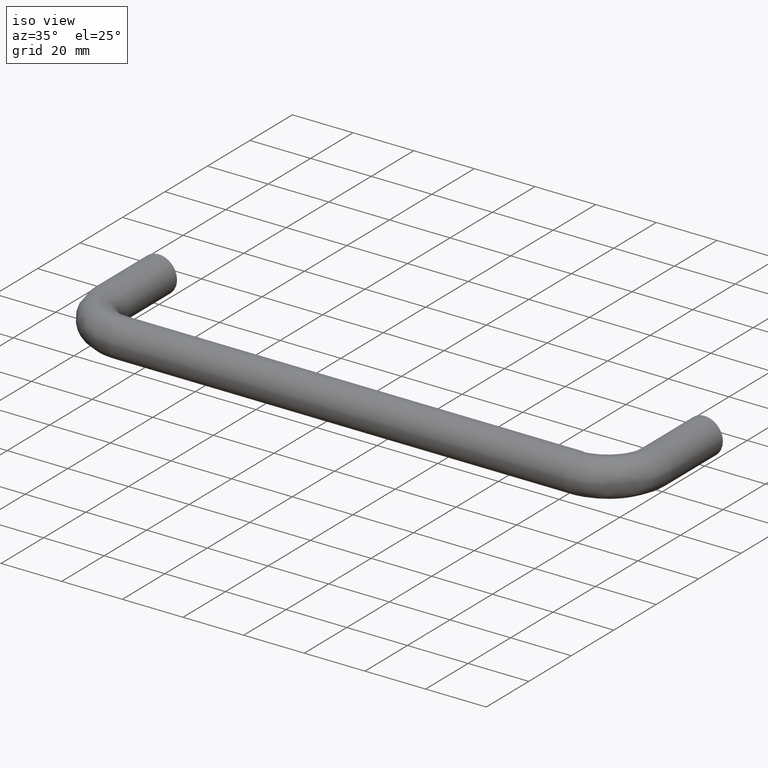
[diagram: clean part render]
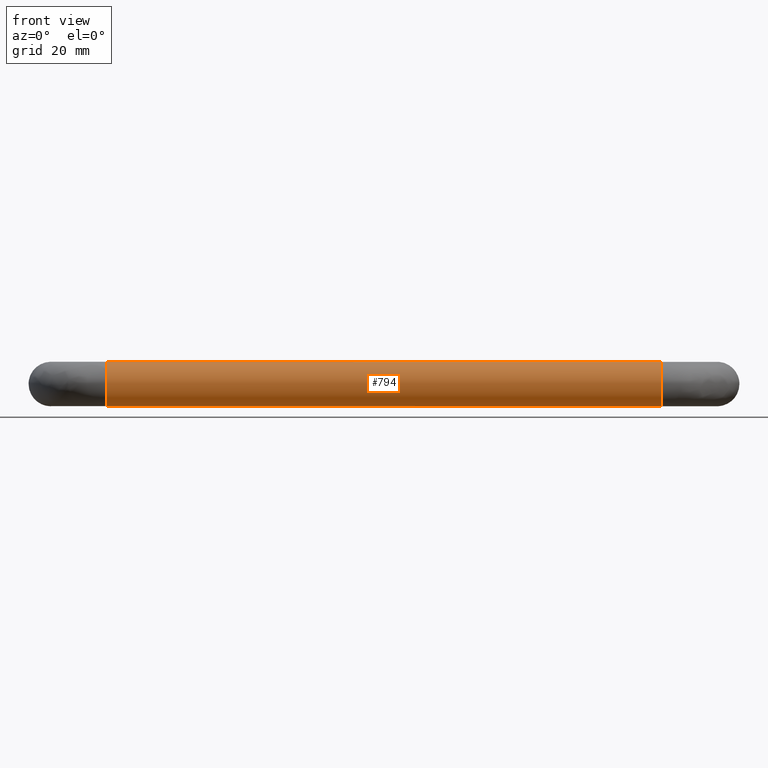
[diagram: tour spotlight — one face highlighted and labeled with its STEP entity id]
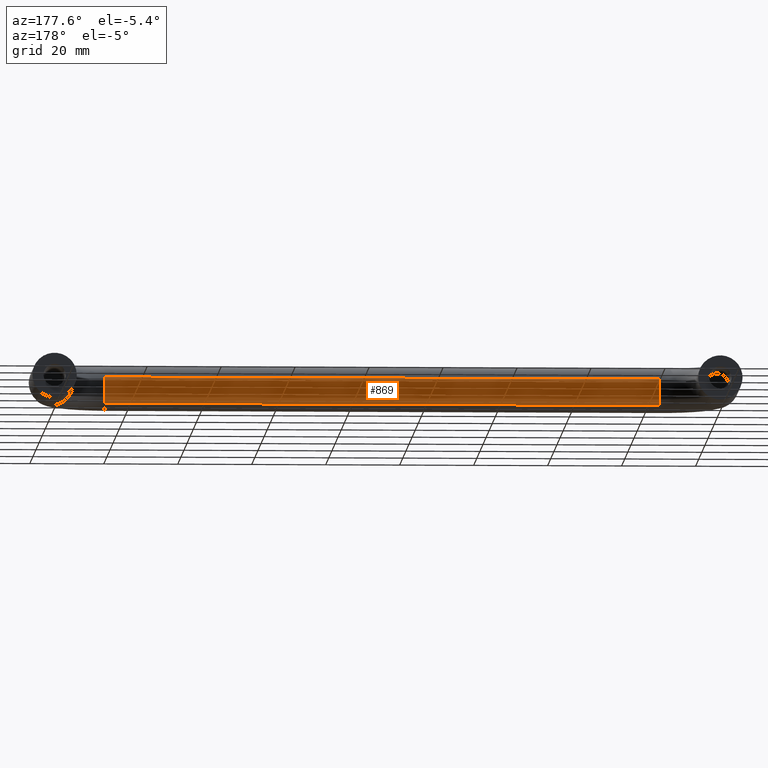
[diagram: tour spotlight — one face highlighted and labeled with its STEP entity id]
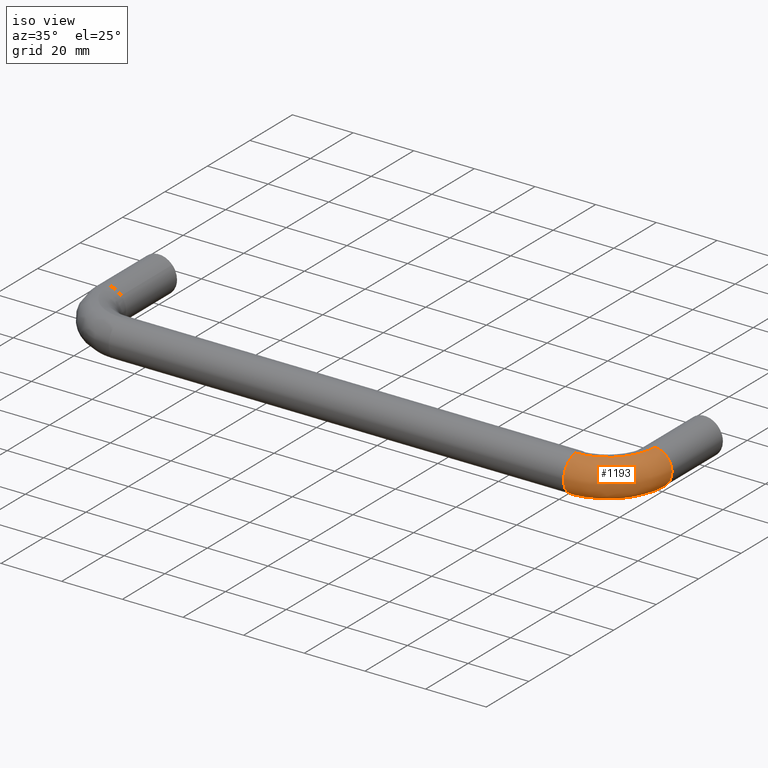
[diagram: tour spotlight — one face highlighted and labeled with its STEP entity id]
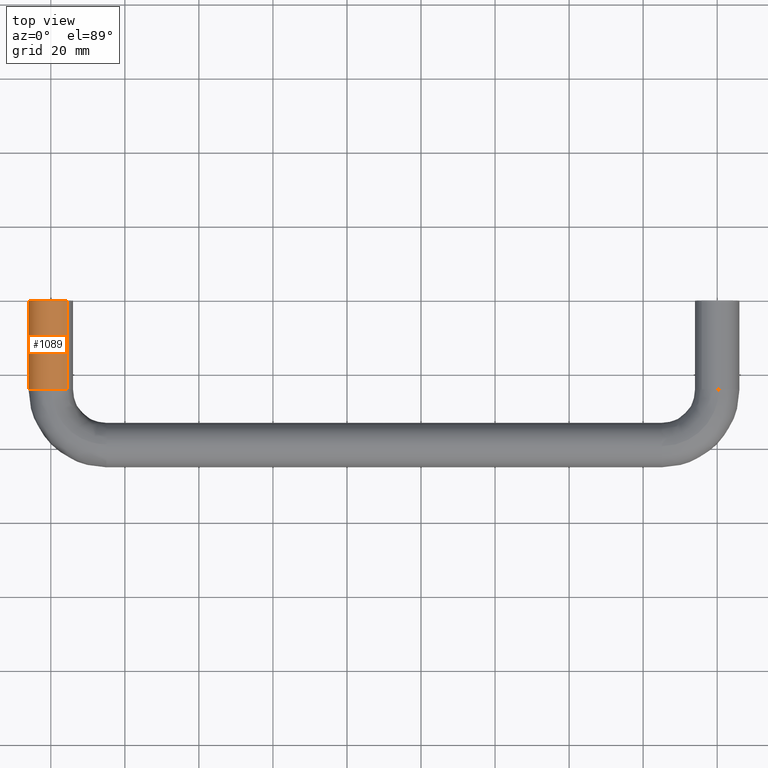
[diagram: tour spotlight — one face highlighted and labeled with its STEP entity id]
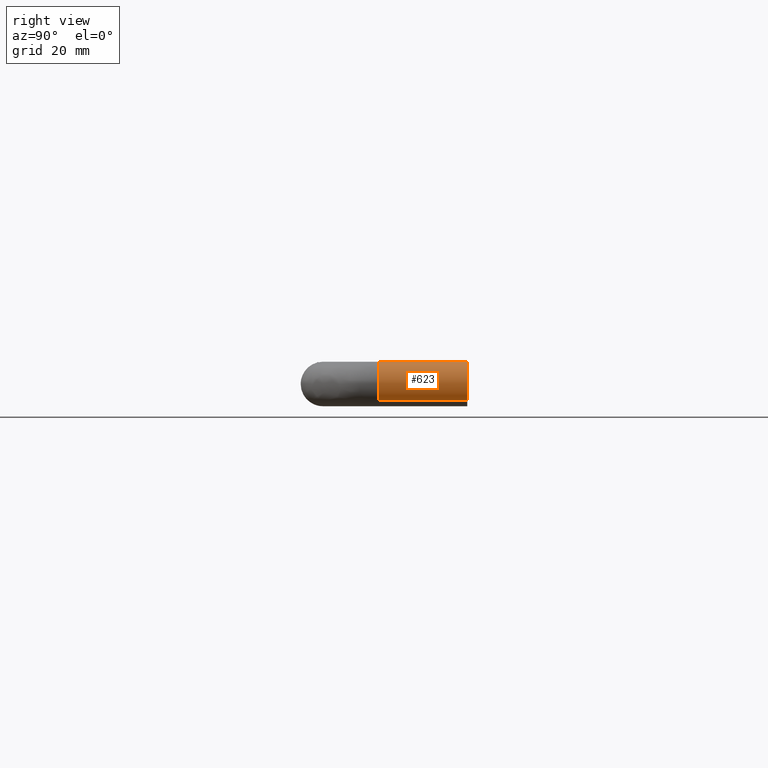
[diagram: tour spotlight — one face highlighted and labeled with its STEP entity id]
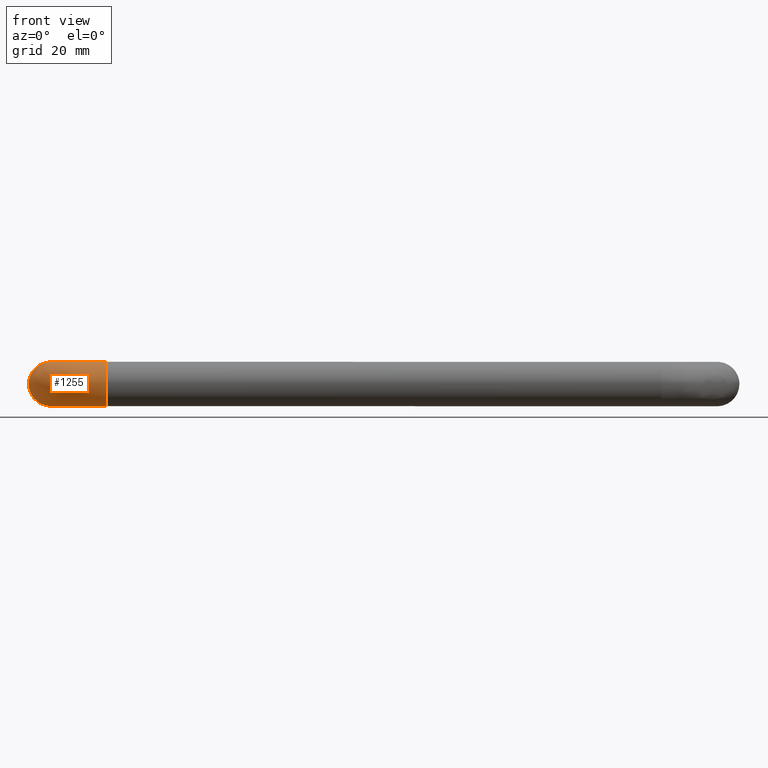
[diagram: tour spotlight — one face highlighted and labeled with its STEP entity id]
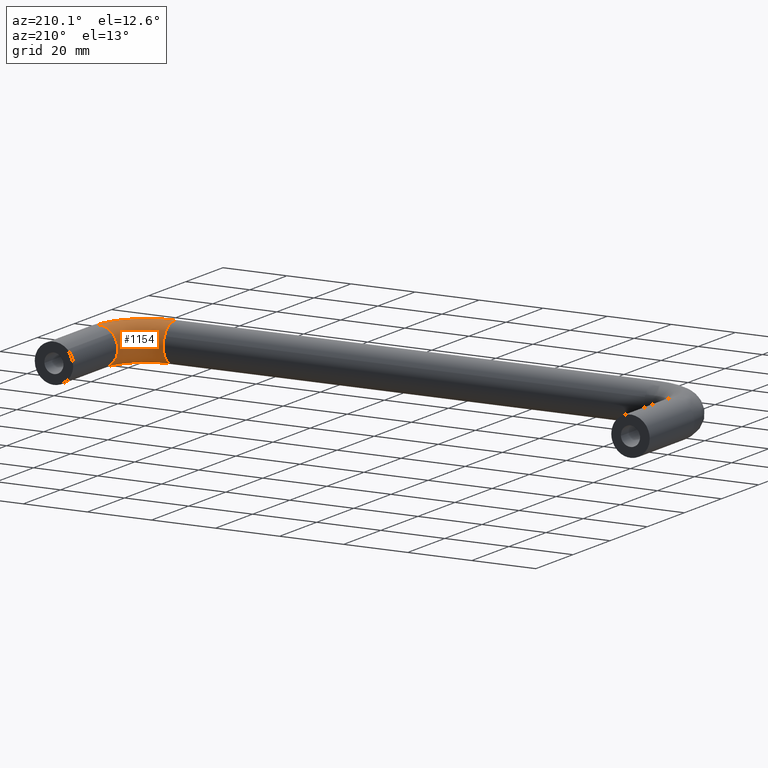
[diagram: tour spotlight — one face highlighted and labeled with its STEP entity id]
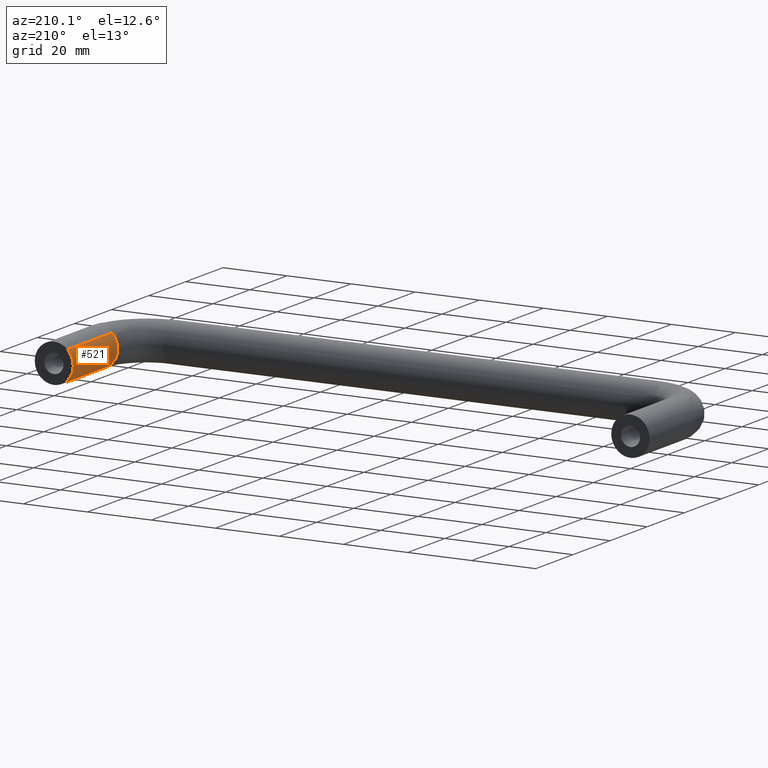
[diagram: tour spotlight — one face highlighted and labeled with its STEP entity id]
A machine part: a face-by-face anatomy tour. The part has 18 B-rep faces; the first image is the clean iso view, then the 8 largest visible faces are spotlighted one at a time (largest first), each with its STEP entity span.

Face 1 — front view, entity #794. In plain terms, the highlighted face is a freeform B-spline surface patch.
Definition (entity closure, byte-faithful):
#624=CARTESIAN_POINT('',(11.249999998756788,-33.626367044185031,2.669095138090656));
#625=CARTESIAN_POINT('',(11.249999998756792,-34.027321464704933,3.476328217622891));
#626=CARTESIAN_POINT('',(11.249999998756790,-34.647753773926283,4.130127454162523));
#627=CARTESIAN_POINT('',(11.249999998756790,-38.777881228088788,8.482373680236247));
#628=CARTESIAN_POINT('',(11.249999998756790,-43.130127454162519,4.352246226073724));
#629=CARTESIAN_POINT('',(11.249999998756790,-47.482373680236243,0.222118771911202));
#630=CARTESIAN_POINT('',(11.249999998756790,-43.352246226073717,-4.130127454162523));
#631=CARTESIAN_POINT('',(11.249999998756790,-39.222118771911205,-8.482373680236247));
#632=CARTESIAN_POINT('',(11.249999998756790,-34.869872545837481,-4.352246226073724));
#633=CARTESIAN_POINT('',(168.843750001397410,-33.626367044185002,2.669095138090656));
#634=CARTESIAN_POINT('',(168.843750001397440,-34.027321464704912,3.476328217622891));
#635=CARTESIAN_POINT('',(168.843750001397410,-34.647753773926247,4.130127454162523));
#636=CARTESIAN_POINT('',(168.843750001397470,-38.777881228088788,8.482373680236247));
#637=CARTESIAN_POINT('',(168.843750001397410,-43.130127454162512,4.352246226073724));
#638=CARTESIAN_POINT('',(168.843750001397470,-47.482373680236243,0.222118771911202));
#639=CARTESIAN_POINT('',(168.843750001397410,-43.352246226073703,-4.130127454162523));
#640=CARTESIAN_POINT('',(168.843750001397470,-39.222118771911184,-8.482373680236247));
#641=CARTESIAN_POINT('',(168.843750001397410,-34.869872545837453,-4.352246226073724));
#649=(BOUNDED_SURFACE()B_SPLINE_SURFACE(2,1,((#624,#633),(#625,#634),(#626,#635),(#627,#636),(#628,#637),(#629,#638),(#630,#639),(#631,#640),(#632,#641)),.UNSPECIFIED.,.F.,.F.,.U.)B_SPLINE_SURFACE_WITH_KNOTS((3,2,2,2,3),(2,2),(0.0,1.988225099390856,11.929350596345140,21.870476093299420,31.811601590253701),(0.0,157.593750002640690),.UNSPECIFIED.)GEOMETRIC_REPRESENTATION_ITEM()RATIONAL_B_SPLINE_SURFACE(((0.906274169979695,0.906274169979695),(0.941421356237309,0.941421356237309),(1.0,1.0),(0.707106781186548,0.707106781186548),(1.0,1.0),(0.707106781186548,0.707106781186548),(1.0,1.0),(0.707106781186548,0.707106781186548),(1.0,1.0)))REPRESENTATION_ITEM('')SURFACE());
#650=CARTESIAN_POINT('',(165.0,-33.626367044200506,2.669095138121863));
#651=VERTEX_POINT('',#650);
#652=CARTESIAN_POINT('',(165.000000000054090,-39.418399510324463,5.985394042981652));
#653=VERTEX_POINT('',#652);
#654=CARTESIAN_POINT('',(164.999999999999970,-33.626367044200506,2.669095138121863));
#655=CARTESIAN_POINT('',(164.999999999999970,-35.280834709864202,6.000000000000001));
#656=CARTESIAN_POINT('',(165.0,-39.0,6.0));
#657=CARTESIAN_POINT('',(165.000000000000030,-39.209454696123281,6.0));
#658=CARTESIAN_POINT('',(165.000000000054110,-39.418399510324463,5.985394042981652));
#666=(BOUNDED_CURVE()B_SPLINE_CURVE(2,(#654,#655,#656,#657,#658),.UNSPECIFIED.,.F.,.U.)B_SPLINE_CURVE_WITH_KNOTS((3,2,3),(0.575619190624198,0.750000000000000,0.762166313514967),.UNSPECIFIED.)CURVE()GEOMETRIC_REPRESENTATION_ITEM()RATIONAL_B_SPLINE_CURVE((0.876408099966890,0.795700173770505,1.0,0.985746277094031,0.972879876281099))REPRESENTATION_ITEM(''));
#667=EDGE_CURVE('',#651,#653,#666,.T.);
#668=ORIENTED_EDGE('',*,*,#667,.F.);
#669=CARTESIAN_POINT('',(14.999999999875209,-33.626367044269713,2.669095138086312));
#670=VERTEX_POINT('',#669);
#671=CARTESIAN_POINT('',(14.999999999875209,-33.626367044269713,2.669095138086312));
#672=CARTESIAN_POINT('',(165.0,-33.626367044200506,2.669095138121863));
#673=QUASI_UNIFORM_CURVE('',1,(#671,#672),.UNSPECIFIED.,.F.,.U.);
#674=EDGE_CURVE('',#670,#651,#673,.T.);
#675=ORIENTED_EDGE('',*,*,#674,.F.);
#676=CARTESIAN_POINT('',(14.999999998819630,-38.924603759046533,5.999526265202118));
#677=VERTEX_POINT('',#676);
#678=CARTESIAN_POINT('',(14.999999999875204,-33.626367044269713,2.669095138086313));
#679=CARTESIAN_POINT('',(14.999999999550189,-35.257710391551527,5.953444296438446));
#680=CARTESIAN_POINT('',(14.999999998819625,-38.924603759046526,5.999526265202118));
#688=(BOUNDED_CURVE()B_SPLINE_CURVE(2,(#678,#679,#680),.UNSPECIFIED.,.F.,.U.)B_SPLINE_CURVE_WITH_KNOTS((3,3),(0.575619190622085,0.747784295824798),.UNSPECIFIED.)CURVE()GEOMETRIC_REPRESENTATION_ITEM()RATIONAL_B_SPLINE_CURVE((0.876408099968847,0.796725658680578,0.994854295420916))REPRESENTATION_ITEM(''));
#689=EDGE_CURVE('',#670,#677,#688,.T.);
#690=ORIENTED_EDGE('',*,*,#689,.T.);
#691=CARTESIAN_POINT('',(15.0,-45.0,0.0));
#692=VERTEX_POINT('',#691);
#693=CARTESIAN_POINT('',(14.999999998819629,-38.924603759046533,5.999526265202118));
#694=CARTESIAN_POINT('',(15.0,-38.962300390395107,6.0));
#695=CARTESIAN_POINT('',(15.0,-39.0,6.0));
#696=CARTESIAN_POINT('',(14.999999999999995,-45.0,6.0));
#697=CARTESIAN_POINT('',(15.0,-45.0,0.0));
#705=(BOUNDED_CURVE()B_SPLINE_CURVE(2,(#693,#694,#695,#696,#697),.UNSPECIFIED.,.F.,.U.)B_SPLINE_CURVE_WITH_KNOTS((3,2,3),(0.747784295824797,0.750000000000000,1.0),.UNSPECIFIED.)CURVE()GEOMETRIC_REPRESENTATION_ITEM()RATIONAL_B_SPLINE_CURVE((0.994854295420915,0.997404141088746,1.0,0.707106781186548,1.0))REPRESENTATION_ITEM(''));
#706=EDGE_CURVE('',#677,#692,#705,.T.);
#707=ORIENTED_EDGE('',*,*,#706,.T.);
#708=CARTESIAN_POINT('',(14.999999999448599,-39.418399512570531,-5.985394042824643));
#709=VERTEX_POINT('',#708);
#710=CARTESIAN_POINT('',(15.0,-45.0,0.0));
#711=CARTESIAN_POINT('',(15.000000000000007,-44.999999999999986,-5.595221077756236));
#712=CARTESIAN_POINT('',(14.999999999448601,-39.418399512570531,-5.985394042824643));
#720=(BOUNDED_CURVE()B_SPLINE_CURVE(2,(#710,#711,#712),.UNSPECIFIED.,.F.,.U.)B_SPLINE_CURVE_WITH_KNOTS((3,3),(0.0,0.237833686355958),.UNSPECIFIED.)CURVE()GEOMETRIC_REPRESENTATION_ITEM()RATIONAL_B_SPLINE_CURVE((1.0,0.721360504243737,0.972879876008094))REPRESENTATION_ITEM(''));
#721=EDGE_CURVE('',#692,#709,#720,.T.);
#722=ORIENTED_EDGE('',*,*,#721,.T.);
#723=CARTESIAN_POINT('',(15.0,-34.869873054902463,-4.352246709158238));
#724=VERTEX_POINT('',#723);
#725=CARTESIAN_POINT('',(14.999999999448598,-39.418399512570531,-5.985394042824644));
#726=CARTESIAN_POINT('',(15.0,-39.209454698377556,-6.0));
#727=CARTESIAN_POINT('',(15.0,-39.0,-6.0));
#728=CARTESIAN_POINT('',(15.000000000000004,-36.606243537657747,-6.000000000000001));
#729=CARTESIAN_POINT('',(15.000000000000005,-34.869873054902463,-4.352246709158238));
#737=(BOUNDED_CURVE()B_SPLINE_CURVE(2,(#725,#726,#727,#728,#729),.UNSPECIFIED.,.F.,.U.)B_SPLINE_CURVE_WITH_KNOTS((3,2,3),(0.237833686355959,0.250000000000000,0.371049491355408),.UNSPECIFIED.)CURVE()GEOMETRIC_REPRESENTATION_ITEM()RATIONAL_B_SPLINE_CURVE((0.972879876008094,0.985746276942811,1.0,0.858181699364734,0.853699663983766))REPRESENTATION_ITEM(''));
#738=EDGE_CURVE('',#709,#724,#737,.T.);
#739=ORIENTED_EDGE('',*,*,#738,.T.);
#740=CARTESIAN_POINT('',(165.000000000420700,-34.869874496015584,-4.352248076460115));
#741=VERTEX_POINT('',#740);
#742=CARTESIAN_POINT('',(15.0,-34.869873054902463,-4.352246709158238));
#743=CARTESIAN_POINT('',(165.000000000420700,-34.869874496015584,-4.352248076460115));
#744=QUASI_UNIFORM_CURVE('',1,(#742,#743),.UNSPECIFIED.,.F.,.U.);
#745=EDGE_CURVE('',#724,#741,#744,.T.);
#746=ORIENTED_EDGE('',*,*,#745,.T.);
#747=CARTESIAN_POINT('',(165.000000001333010,-38.924603758927660,-5.999526265200624));
#748=VERTEX_POINT('',#747);
#749=CARTESIAN_POINT('',(165.000000001333060,-38.924603758927660,-5.999526265200625));
#750=CARTESIAN_POINT('',(165.000000000804310,-36.574624527566719,-5.969993999322286));
#751=CARTESIAN_POINT('',(165.000000000420670,-34.869874496015569,-4.352248076460115));
#759=(BOUNDED_CURVE()B_SPLINE_CURVE(2,(#749,#750,#751),.UNSPECIFIED.,.F.,.U.)B_SPLINE_CURVE_WITH_KNOTS((3,3),(0.252215704182171,0.371049459051509),.UNSPECIFIED.)CURVE()GEOMETRIC_REPRESENTATION_ITEM()RATIONAL_B_SPLINE_CURVE((0.994854295404876,0.858099696835444,0.853699666375974))REPRESENTATION_ITEM(''));
#760=EDGE_CURVE('',#748,#741,#759,.T.);
#761=ORIENTED_EDGE('',*,*,#760,.F.);
#762=CARTESIAN_POINT('',(165.0,-45.0,0.0));
#763=VERTEX_POINT('',#762);
#764=CARTESIAN_POINT('',(165.0,-45.0,0.0));
#765=CARTESIAN_POINT('',(165.000000000000090,-45.0,-6.0));
#766=CARTESIAN_POINT('',(165.0,-39.0,-6.0));
#767=CARTESIAN_POINT('',(164.999999999999940,-38.962300390276233,-6.0));
#768=CARTESIAN_POINT('',(165.000000001332980,-38.924603758927667,-5.999526265200625));
#776=(BOUNDED_CURVE()B_SPLINE_CURVE(2,(#764,#765,#766,#767,#768),.UNSPECIFIED.,.F.,.U.)B_SPLINE_CURVE_WITH_KNOTS((3,2,3),(0.0,0.250000000000000,0.252215704182171),.UNSPECIFIED.)CURVE()GEOMETRIC_REPRESENTATION_ITEM()RATIONAL_B_SPLINE_CURVE((1.0,0.707106781186548,1.0,0.997404141080582,0.994854295404876))REPRESENTATION_ITEM(''));
#777=EDGE_CURVE('',#763,#748,#776,.T.);
#778=ORIENTED_EDGE('',*,*,#777,.F.);
#779=CARTESIAN_POINT('',(165.000000000054110,-39.418399510324463,5.985394042981652));
#780=CARTESIAN_POINT('',(165.000000000000030,-44.999999999999993,5.595221081965786));
#781=CARTESIAN_POINT('',(165.0,-45.0,0.0));
#789=(BOUNDED_CURVE()B_SPLINE_CURVE(2,(#779,#780,#781),.UNSPECIFIED.,.F.,.U.)B_SPLINE_CURVE_WITH_KNOTS((3,3),(0.762166313514966,1.0),.UNSPECIFIED.)CURVE()GEOMETRIC_REPRESENTATION_ITEM()RATIONAL_B_SPLINE_CURVE((0.972879876281100,0.721360504092516,1.0))REPRESENTATION_ITEM(''));
#790=EDGE_CURVE('',#653,#763,#789,.T.);
#791=ORIENTED_EDGE('',*,*,#790,.F.);
#792=EDGE_LOOP('',(#668,#675,#690,#707,#722,#739,#746,#761,#778,#791));
#793=FACE_OUTER_BOUND('',#792,.T.);
#794=ADVANCED_FACE('',(#793),#649,.T.);

Face 2 — auxiliary view, entity #869. In plain terms, the highlighted face is a freeform B-spline surface patch.
Definition (entity closure, byte-faithful):
#650=CARTESIAN_POINT('',(165.0,-33.626367044200506,2.669095138121863));
#651=VERTEX_POINT('',#650);
#669=CARTESIAN_POINT('',(14.999999999875209,-33.626367044269713,2.669095138086312));
#670=VERTEX_POINT('',#669);
#671=CARTESIAN_POINT('',(14.999999999875209,-33.626367044269713,2.669095138086312));
#672=CARTESIAN_POINT('',(165.0,-33.626367044200506,2.669095138121863));
#673=QUASI_UNIFORM_CURVE('',1,(#671,#672),.UNSPECIFIED.,.F.,.U.);
#674=EDGE_CURVE('',#670,#651,#673,.T.);
#723=CARTESIAN_POINT('',(15.0,-34.869873054902463,-4.352246709158238));
#724=VERTEX_POINT('',#723);
#740=CARTESIAN_POINT('',(165.000000000420700,-34.869874496015584,-4.352248076460115));
#741=VERTEX_POINT('',#740);
#742=CARTESIAN_POINT('',(15.0,-34.869873054902463,-4.352246709158238));
#743=CARTESIAN_POINT('',(165.000000000420700,-34.869874496015584,-4.352248076460115));
#744=QUASI_UNIFORM_CURVE('',1,(#742,#743),.UNSPECIFIED.,.F.,.U.);
#745=EDGE_CURVE('',#724,#741,#744,.T.);
#795=CARTESIAN_POINT('',(11.249999998756790,-34.869872545837481,-4.352246226073724));
#796=CARTESIAN_POINT('',(11.249999998756790,-31.654449898810537,-1.300924067032585));
#797=CARTESIAN_POINT('',(11.249999998756788,-33.626367044185031,2.669095138090656));
#798=CARTESIAN_POINT('',(168.843750001397410,-34.869872545837453,-4.352246226073724));
#799=CARTESIAN_POINT('',(168.843750001397440,-31.654449898810494,-1.300924067032585));
#800=CARTESIAN_POINT('',(168.843750001397410,-33.626367044185002,2.669095138090656));
#808=(BOUNDED_SURFACE()B_SPLINE_SURFACE(2,1,((#795,#798),(#796,#799),(#797,#800)),.UNSPECIFIED.,.F.,.F.,.U.)B_SPLINE_SURFACE_WITH_KNOTS((3,3),(2,2),(0.0,7.898692343319879),(0.0,157.593750002640690),.UNSPECIFIED.)GEOMETRIC_REPRESENTATION_ITEM()RATIONAL_B_SPLINE_SURFACE(((1.0,1.0),(0.765685424949238,0.765685424949238),(0.906274169979695,0.906274169979695)))REPRESENTATION_ITEM('')SURFACE());
#809=CARTESIAN_POINT('',(165.0,-33.0,0.0));
#810=VERTEX_POINT('',#809);
#811=CARTESIAN_POINT('',(165.0,-33.0,0.0));
#812=CARTESIAN_POINT('',(165.000000000000060,-33.0,1.408043576856816));
#813=CARTESIAN_POINT('',(165.0,-33.626367044200514,2.669095138121864));
#821=(BOUNDED_CURVE()B_SPLINE_CURVE(2,(#811,#812,#813),.UNSPECIFIED.,.F.,.U.)B_SPLINE_CURVE_WITH_KNOTS((3,3),(0.500000000000000,0.575619190624199),.UNSPECIFIED.)CURVE()GEOMETRIC_REPRESENTATION_ITEM()RATIONAL_B_SPLINE_CURVE((1.0,0.911406607416042,0.876408099966890))REPRESENTATION_ITEM(''));
#822=EDGE_CURVE('',#810,#651,#821,.T.);
#823=ORIENTED_EDGE('',*,*,#822,.F.);
#824=CARTESIAN_POINT('',(165.000000000420670,-34.869874496015569,-4.352248076460115));
#825=CARTESIAN_POINT('',(165.0,-33.000000000000007,-2.577805027836772));
#826=CARTESIAN_POINT('',(165.0,-33.0,0.0));
#834=(BOUNDED_CURVE()B_SPLINE_CURVE(2,(#824,#825,#826),.UNSPECIFIED.,.F.,.U.)B_SPLINE_CURVE_WITH_KNOTS((3,3),(0.371049459051509,0.500000000000000),.UNSPECIFIED.)CURVE()GEOMETRIC_REPRESENTATION_ITEM()RATIONAL_B_SPLINE_CURVE((0.853699666375974,0.848925043975442,1.0))REPRESENTATION_ITEM(''));
#835=EDGE_CURVE('',#741,#810,#834,.T.);
#836=ORIENTED_EDGE('',*,*,#835,.F.);
#837=ORIENTED_EDGE('',*,*,#745,.F.);
#838=CARTESIAN_POINT('',(15.0,-33.0,0.0));
#839=VERTEX_POINT('',#838);
#840=CARTESIAN_POINT('',(15.000000000000004,-34.869873054902456,-4.352246709158237));
#841=CARTESIAN_POINT('',(15.0,-33.0,-2.577804267138424));
#842=CARTESIAN_POINT('',(15.0,-33.0,0.0));
#850=(BOUNDED_CURVE()B_SPLINE_CURVE(2,(#840,#841,#842),.UNSPECIFIED.,.F.,.U.)B_SPLINE_CURVE_WITH_KNOTS((3,3),(0.371049491355407,0.500000000000000),.UNSPECIFIED.)CURVE()GEOMETRIC_REPRESENTATION_ITEM()RATIONAL_B_SPLINE_CURVE((0.853699663983766,0.848925081821813,1.0))REPRESENTATION_ITEM(''));
#851=EDGE_CURVE('',#724,#839,#850,.T.);
#852=ORIENTED_EDGE('',*,*,#851,.T.);
#853=CARTESIAN_POINT('',(15.0,-33.0,0.0));
#854=CARTESIAN_POINT('',(15.0,-33.0,1.408043576813630));
#855=CARTESIAN_POINT('',(14.999999999875211,-33.626367044269706,2.669095138086313));
#863=(BOUNDED_CURVE()B_SPLINE_CURVE(2,(#853,#854,#855),.UNSPECIFIED.,.F.,.U.)B_SPLINE_CURVE_WITH_KNOTS((3,3),(0.500000000000000,0.575619190622085),.UNSPECIFIED.)CURVE()GEOMETRIC_REPRESENTATION_ITEM()RATIONAL_B_SPLINE_CURVE((1.0,0.911406607418518,0.876408099968846))REPRESENTATION_ITEM(''));
#864=EDGE_CURVE('',#839,#670,#863,.T.);
#865=ORIENTED_EDGE('',*,*,#864,.T.);
#866=ORIENTED_EDGE('',*,*,#674,.T.);
#867=EDGE_LOOP('',(#823,#836,#837,#852,#865,#866));
#868=FACE_OUTER_BOUND('',#867,.T.);
#869=ADVANCED_FACE('',(#868),#808,.T.);

Face 3 — iso view, entity #1193. In plain terms, the highlighted face is a freeform B-spline surface patch.
Definition (entity closure, byte-faithful):
#426=CARTESIAN_POINT('',(183.953816404243100,-24.000000000000028,-4.513018484510798));
#427=VERTEX_POINT('',#426);
#428=CARTESIAN_POINT('',(179.924603759232810,-24.000000001158671,-5.999526265204459));
#429=VERTEX_POINT('',#428);
#430=CARTESIAN_POINT('',(183.953816404243180,-24.000000000000007,-4.513018484510921));
#431=CARTESIAN_POINT('',(182.256525893149610,-24.0,-6.0));
#432=CARTESIAN_POINT('',(180.0,-24.0,-6.0));
#433=CARTESIAN_POINT('',(179.962300390581420,-23.999999999999996,-6.0));
#434=CARTESIAN_POINT('',(179.924603759232890,-24.000000001158668,-5.999526265204459));
#442=(BOUNDED_CURVE()B_SPLINE_CURVE(2,(#430,#431,#432,#433,#434),.UNSPECIFIED.,.F.,.U.)B_SPLINE_CURVE_WITH_KNOTS((3,2,3),(0.134954754507824,0.250000000000000,0.252215704164279),.UNSPECIFIED.)CURVE()GEOMETRIC_REPRESENTATION_ITEM()RATIONAL_B_SPLINE_CURVE((0.854482186737985,0.865216110954452,1.0,0.997404141101543,0.994854295446056))REPRESENTATION_ITEM(''));
#443=EDGE_CURVE('',#427,#429,#442,.T.);
#544=CARTESIAN_POINT('',(186.0,-24.0,0.0));
#545=VERTEX_POINT('',#544);
#546=CARTESIAN_POINT('',(186.0,-24.0,0.0));
#547=CARTESIAN_POINT('',(185.999999999999970,-24.0,-2.720374759526646));
#548=CARTESIAN_POINT('',(183.953816404243180,-23.999999999999993,-4.513018484510921));
#556=(BOUNDED_CURVE()B_SPLINE_CURVE(2,(#546,#547,#548),.UNSPECIFIED.,.F.,.U.)B_SPLINE_CURVE_WITH_KNOTS((3,3),(0.0,0.134954754507825),.UNSPECIFIED.)CURVE()GEOMETRIC_REPRESENTATION_ITEM()RATIONAL_B_SPLINE_CURVE((1.0,0.841890670232096,0.854482186737985))REPRESENTATION_ITEM(''));
#557=EDGE_CURVE('',#545,#427,#556,.T.);
#591=CARTESIAN_POINT('',(180.418399512379300,-24.000000000521919,5.985394042838014));
#592=VERTEX_POINT('',#591);
#608=CARTESIAN_POINT('',(180.418399512379320,-24.000000000521926,5.985394042838014));
#609=CARTESIAN_POINT('',(186.0,-24.000000000000007,5.595221078114689));
#610=CARTESIAN_POINT('',(186.0,-24.0,0.0));
#618=(BOUNDED_CURVE()B_SPLINE_CURVE(2,(#608,#609,#610),.UNSPECIFIED.,.F.,.U.)B_SPLINE_CURVE_WITH_KNOTS((3,3),(0.762166313633051,1.0),.UNSPECIFIED.)CURVE()GEOMETRIC_REPRESENTATION_ITEM()RATIONAL_B_SPLINE_CURVE((0.972879876031341,0.721360504230860,1.0))REPRESENTATION_ITEM(''));
#619=EDGE_CURVE('',#592,#545,#618,.T.);
#652=CARTESIAN_POINT('',(165.000000000054090,-39.418399510324463,5.985394042981652));
#653=VERTEX_POINT('',#652);
#747=CARTESIAN_POINT('',(165.000000001333010,-38.924603758927660,-5.999526265200624));
#748=VERTEX_POINT('',#747);
#762=CARTESIAN_POINT('',(165.0,-45.0,0.0));
#763=VERTEX_POINT('',#762);
#764=CARTESIAN_POINT('',(165.0,-45.0,0.0));
#765=CARTESIAN_POINT('',(165.000000000000090,-45.0,-6.0));
#766=CARTESIAN_POINT('',(165.0,-39.0,-6.0));
#767=CARTESIAN_POINT('',(164.999999999999940,-38.962300390276233,-6.0));
#768=CARTESIAN_POINT('',(165.000000001332980,-38.924603758927667,-5.999526265200625));
#776=(BOUNDED_CURVE()B_SPLINE_CURVE(2,(#764,#765,#766,#767,#768),.UNSPECIFIED.,.F.,.U.)B_SPLINE_CURVE_WITH_KNOTS((3,2,3),(0.0,0.250000000000000,0.252215704182171),.UNSPECIFIED.)CURVE()GEOMETRIC_REPRESENTATION_ITEM()RATIONAL_B_SPLINE_CURVE((1.0,0.707106781186548,1.0,0.997404141080582,0.994854295404876))REPRESENTATION_ITEM(''));
#777=EDGE_CURVE('',#763,#748,#776,.T.);
#779=CARTESIAN_POINT('',(165.000000000054110,-39.418399510324463,5.985394042981652));
#780=CARTESIAN_POINT('',(165.000000000000030,-44.999999999999993,5.595221081965786));
#781=CARTESIAN_POINT('',(165.0,-45.0,0.0));
#789=(BOUNDED_CURVE()B_SPLINE_CURVE(2,(#779,#780,#781),.UNSPECIFIED.,.F.,.U.)B_SPLINE_CURVE_WITH_KNOTS((3,3),(0.762166313514966,1.0),.UNSPECIFIED.)CURVE()GEOMETRIC_REPRESENTATION_ITEM()RATIONAL_B_SPLINE_CURVE((0.972879876281100,0.721360504092516,1.0))REPRESENTATION_ITEM(''));
#790=EDGE_CURVE('',#653,#763,#789,.T.);
#1122=CARTESIAN_POINT('',(165.000000001333060,-38.924603758927653,-5.999526265200624));
#1123=CARTESIAN_POINT('',(179.924603758382570,-38.924603758033832,-5.999526265222895));
#1124=CARTESIAN_POINT('',(179.924603759232870,-24.000000001158675,-5.999526265204460));
#1132=(BOUNDED_CURVE()B_SPLINE_CURVE(2,(#1122,#1123,#1124),.UNSPECIFIED.,.F.,.U.)B_SPLINE_CURVE_WITH_KNOTS((3,3),(-1.734750791472783,-0.265249208502939),.UNSPECIFIED.)CURVE()GEOMETRIC_REPRESENTATION_ITEM()RATIONAL_B_SPLINE_CURVE((0.889029723510660,0.628638946278784,0.889029723519264))REPRESENTATION_ITEM(''));
#1133=EDGE_CURVE('',#748,#429,#1132,.T.);
#1139=CARTESIAN_POINT('',(165.000000000054110,-39.418399510324463,5.985394042981652));
#1140=CARTESIAN_POINT('',(180.418399508408870,-39.418399509344383,5.985394043042591));
#1141=CARTESIAN_POINT('',(180.418399512379320,-24.000000000521926,5.985394042838014));
#1149=(BOUNDED_CURVE()B_SPLINE_CURVE(2,(#1139,#1140,#1141),.UNSPECIFIED.,.F.,.U.)B_SPLINE_CURVE_WITH_KNOTS((3,3),(-1.734750791651105,-0.265249208411948),.UNSPECIFIED.)CURVE()GEOMETRIC_REPRESENTATION_ITEM()RATIONAL_B_SPLINE_CURVE((0.869031711872732,0.614498216546599,0.869031711850890))REPRESENTATION_ITEM(''));
#1150=EDGE_CURVE('',#653,#592,#1149,.T.);
#1155=CARTESIAN_POINT('',(163.968027650727090,-38.804677797650520,-5.998470605580804));
#1156=CARTESIAN_POINT('',(180.991299533352960,-39.991299088376117,-5.998470605580806));
#1157=CARTESIAN_POINT('',(179.804677768934600,-22.968027238769366,-5.998470605580804));
#1158=CARTESIAN_POINT('',(163.965115506465650,-38.846455426209523,-5.998996900347788));
#1159=CARTESIAN_POINT('',(181.036425714497430,-40.036425268264757,-5.998996900347789));
#1160=CARTESIAN_POINT('',(179.846455397412650,-22.965115093345410,-5.998996900347788));
#1161=CARTESIAN_POINT('',(163.544996732032360,-44.873480371800163,-6.074922504523010));
#1162=CARTESIAN_POINT('',(187.546527623991490,-46.546526996607618,-6.074922504523014));
#1163=CARTESIAN_POINT('',(185.873480331313030,-22.544996151203080,-6.074922504523012));
#1164=CARTESIAN_POINT('',(163.539753896395350,-44.948694104423168,-0.075396239300116));
#1165=CARTESIAN_POINT('',(187.627769873491020,-46.627769243846423,-0.075396239300116));
#1166=CARTESIAN_POINT('',(185.948694063790040,-22.539753313473120,-0.075396239300116));
#1167=CARTESIAN_POINT('',(163.534802806526760,-45.019722451553449,5.590277027038185));
#1168=CARTESIAN_POINT('',(187.704491271271050,-46.704490639491638,5.590277027038183));
#1169=CARTESIAN_POINT('',(186.019722410782630,-22.534802221627992,5.590277027038184));
#1170=CARTESIAN_POINT('',(163.930830733343190,-39.338304863650052,5.988391231547434));
#1171=CARTESIAN_POINT('',(181.567697775053150,-40.567697314037268,5.988391231547435));
#1172=CARTESIAN_POINT('',(180.338304833899200,-22.930830306536617,5.988391231547434));
#1173=CARTESIAN_POINT('',(163.933795981839150,-39.295765401615959,5.991372100991711));
#1174=CARTESIAN_POINT('',(181.521748698101160,-40.521748238363791,5.991372100991710));
#1175=CARTESIAN_POINT('',(180.295765371947600,-22.933795556216261,5.991372100991712));
#1183=(BOUNDED_SURFACE()B_SPLINE_SURFACE(2,2,((#1155,#1158,#1161,#1164,#1167,#1170,#1173),(#1156,#1159,#1162,#1165,#1168,#1171,#1174),(#1157,#1160,#1163,#1166,#1169,#1172,#1175)),.UNSPECIFIED.,.F.,.F.,.U.)B_SPLINE_SURFACE_WITH_KNOTS((3,3),(3,1,2,1,3),(0.0,38.268988932981088),(0.0,0.098996732984633,10.040122229938980,19.583602707015160,19.682316981687240),.UNSPECIFIED.)GEOMETRIC_REPRESENTATION_ITEM()RATIONAL_B_SPLINE_SURFACE(((0.921687520438060,0.919014807839497,0.647951709431553,0.916342095240933,0.658687324863928,0.898181593459837,0.900633473308901),(0.604834370261918,0.603080469503150,0.425202094466791,0.601326568744382,0.432247073437895,0.589409193913062,0.591018178706262),(0.921687532122689,0.919014819490242,0.647951717645915,0.916342106857795,0.658687333214390,0.898181604846470,0.900633484726618)))REPRESENTATION_ITEM('')SURFACE());
#1184=ORIENTED_EDGE('',*,*,#619,.F.);
#1185=ORIENTED_EDGE('',*,*,#1150,.F.);
#1186=ORIENTED_EDGE('',*,*,#790,.T.);
#1187=ORIENTED_EDGE('',*,*,#777,.T.);
#1188=ORIENTED_EDGE('',*,*,#1133,.T.);
#1189=ORIENTED_EDGE('',*,*,#443,.F.);
#1190=ORIENTED_EDGE('',*,*,#557,.F.);
#1191=EDGE_LOOP('',(#1184,#1185,#1186,#1187,#1188,#1189,#1190));
#1192=FACE_OUTER_BOUND('',#1191,.T.);
#1193=ADVANCED_FACE('',(#1192),#1183,.T.);

Face 4 — top view, entity #1089. In plain terms, the highlighted face is a freeform B-spline surface patch.
Definition (entity closure, byte-faithful):
#892=CARTESIAN_POINT('',(2.905318393535143,-24.0,-5.249678564653877));
#893=VERTEX_POINT('',#892);
#909=CARTESIAN_POINT('',(2.905309782396585,0.0,-5.249683330279442));
#910=VERTEX_POINT('',#909);
#911=CARTESIAN_POINT('',(2.905309782396585,0.0,-5.249683330279442));
#912=CARTESIAN_POINT('',(2.905318393535143,-24.0,-5.249678564653877));
#913=QUASI_UNIFORM_CURVE('',1,(#911,#912),.UNSPECIFIED.,.F.,.U.);
#914=EDGE_CURVE('',#910,#893,#913,.T.);
#931=CARTESIAN_POINT('',(4.423666584787512,1.110223E-016,4.053538447655331));
#932=VERTEX_POINT('',#931);
#946=CARTESIAN_POINT('',(4.423666547451096,-24.000000000116419,4.053538488362753));
#947=VERTEX_POINT('',#946);
#948=CARTESIAN_POINT('',(4.423666584787512,1.110223E-016,4.053538447655331));
#949=CARTESIAN_POINT('',(4.423666547451096,-24.000000000116419,4.053538488362753));
#950=QUASI_UNIFORM_CURVE('',1,(#948,#949),.UNSPECIFIED.,.F.,.U.);
#951=EDGE_CURVE('',#932,#947,#950,.T.);
#969=CARTESIAN_POINT('',(4.423664020860743,0.600000000015522,4.053541245693961));
#970=CARTESIAN_POINT('',(0.370122775166782,0.600000000015521,8.477205266554705));
#971=CARTESIAN_POINT('',(-4.053541245693961,0.600000000015521,4.423664020860743));
#972=CARTESIAN_POINT('',(-8.477205266554705,0.600000000015520,0.370122775166782));
#973=CARTESIAN_POINT('',(-4.423664020860743,0.600000000015520,-4.053541245693961));
#974=CARTESIAN_POINT('',(-1.230325250919644,0.600000000015521,-7.538458992124772));
#975=CARTESIAN_POINT('',(2.905318393526275,0.600000000015521,-5.249678564658782));
#976=CARTESIAN_POINT('',(4.423664020860747,-24.615000000636691,4.053541245693961));
#977=CARTESIAN_POINT('',(0.370122775166785,-24.615000000636698,8.477205266554705));
#978=CARTESIAN_POINT('',(-4.053541245693958,-24.615000000636691,4.423664020860743));
#979=CARTESIAN_POINT('',(-8.477205266554702,-24.615000000636698,0.370122775166782));
#980=CARTESIAN_POINT('',(-4.423664020860739,-24.615000000636691,-4.053541245693961));
#981=CARTESIAN_POINT('',(-1.230325250919641,-24.615000000636694,-7.538458992124772));
#982=CARTESIAN_POINT('',(2.905318393526280,-24.615000000636691,-5.249678564658782));
#990=(BOUNDED_SURFACE()B_SPLINE_SURFACE(2,1,((#969,#976),(#970,#977),(#971,#978),(#972,#979),(#973,#980),(#974,#981),(#975,#982)),.UNSPECIFIED.,.F.,.F.,.U.)B_SPLINE_SURFACE_WITH_KNOTS((3,2,2,3),(2,2),(0.0,9.941125496954280,19.882250993908560,28.232796411350151),(0.0,25.215000000652221),.UNSPECIFIED.)GEOMETRIC_REPRESENTATION_ITEM()RATIONAL_B_SPLINE_SURFACE(((1.0,1.0),(0.707106781186548,0.707106781186548),(1.0,1.0),(0.707106781186548,0.707106781186548),(1.0,1.0),(0.753969696196700,0.753969696196700),(0.921270302782944,0.921270302782944)))REPRESENTATION_ITEM('')SURFACE());
#991=CARTESIAN_POINT('',(-0.418399512824394,-24.000000000620791,-5.985394042806897));
#992=VERTEX_POINT('',#991);
#993=CARTESIAN_POINT('',(-0.418399512824394,-24.000000000620787,-5.985394042806897));
#994=CARTESIAN_POINT('',(-0.209454698632360,-24.000000000000004,-6.0));
#995=CARTESIAN_POINT('',(2.939055E-015,-24.0,-6.0));
#996=CARTESIAN_POINT('',(1.549547416940609,-24.0,-6.000000000000001));
#997=CARTESIAN_POINT('',(2.905318393535143,-24.000000000000004,-5.249678564653877));
#1005=(BOUNDED_CURVE()B_SPLINE_CURVE(2,(#993,#994,#995,#996,#997),.UNSPECIFIED.,.F.,.U.)B_SPLINE_CURVE_WITH_KNOTS((3,2,3),(0.237833686341369,0.250000000000000,0.332484288971160),.UNSPECIFIED.)CURVE()GEOMETRIC_REPRESENTATION_ITEM()RATIONAL_B_SPLINE_CURVE((0.972879875977236,0.985746276925718,1.0,0.903363644406792,0.870495137452543))REPRESENTATION_ITEM(''));
#1006=EDGE_CURVE('',#992,#893,#1005,.T.);
#1007=ORIENTED_EDGE('',*,*,#1006,.F.);
#1008=CARTESIAN_POINT('',(-5.999999999999997,-24.0,0.0));
#1009=VERTEX_POINT('',#1008);
#1010=CARTESIAN_POINT('',(-5.999999999999997,-24.0,0.0));
#1011=CARTESIAN_POINT('',(-5.999999999999999,-24.000000000000011,-5.595221077280439));
#1012=CARTESIAN_POINT('',(-0.418399512824394,-24.000000000620783,-5.985394042806897));
#1020=(BOUNDED_CURVE()B_SPLINE_CURVE(2,(#1010,#1011,#1012),.UNSPECIFIED.,.F.,.U.)B_SPLINE_CURVE_WITH_KNOTS((3,3),(0.0,0.237833686341369),.UNSPECIFIED.)CURVE()GEOMETRIC_REPRESENTATION_ITEM()RATIONAL_B_SPLINE_CURVE((1.0,0.721360504260829,0.972879875977236))REPRESENTATION_ITEM(''));
#1021=EDGE_CURVE('',#1009,#992,#1020,.T.);
#1022=ORIENTED_EDGE('',*,*,#1021,.F.);
#1023=CARTESIAN_POINT('',(0.075396239566499,-24.000000000438011,5.999526265219547));
#1024=VERTEX_POINT('',#1023);
#1025=CARTESIAN_POINT('',(0.075396239566499,-24.000000000438011,5.999526265219547));
#1026=CARTESIAN_POINT('',(0.037699608217752,-23.999999999999996,6.0));
#1027=CARTESIAN_POINT('',(2.939055E-015,-24.0,6.0));
#1028=CARTESIAN_POINT('',(-5.999999999999998,-23.999999999999996,6.0));
#1029=CARTESIAN_POINT('',(-5.999999999999997,-24.0,0.0));
#1037=(BOUNDED_CURVE()B_SPLINE_CURVE(2,(#1025,#1026,#1027,#1028,#1029),.UNSPECIFIED.,.F.,.U.)B_SPLINE_CURVE_WITH_KNOTS((3,2,3),(0.747784295906111,0.750000000000000,1.0),.UNSPECIFIED.)CURVE()GEOMETRIC_REPRESENTATION_ITEM()RATIONAL_B_SPLINE_CURVE((0.994854295608068,0.997404141184011,1.0,0.707106781186548,1.0))REPRESENTATION_ITEM(''));
#1038=EDGE_CURVE('',#1024,#1009,#1037,.T.);
#1039=ORIENTED_EDGE('',*,*,#1038,.F.);
#1040=CARTESIAN_POINT('',(4.423666547451097,-24.000000000116430,4.053538488362754));
#1041=CARTESIAN_POINT('',(2.670382202534906,-24.000000000246160,5.966914993032725));
#1042=CARTESIAN_POINT('',(0.075396239566499,-24.000000000438011,5.999526265219547));
#1050=(BOUNDED_CURVE()B_SPLINE_CURVE(2,(#1040,#1041,#1042),.UNSPECIFIED.,.F.,.U.)B_SPLINE_CURVE_WITH_KNOTS((3,3),(0.618415114987918,0.747784295906111),.UNSPECIFIED.)CURVE()GEOMETRIC_REPRESENTATION_ITEM()RATIONAL_B_SPLINE_CURVE((0.853959792452609,0.845975465380940,0.994854295608066))REPRESENTATION_ITEM(''));
#1051=EDGE_CURVE('',#947,#1024,#1050,.T.);
#1052=ORIENTED_EDGE('',*,*,#1051,.F.);
#1053=ORIENTED_EDGE('',*,*,#951,.F.);
#1054=CARTESIAN_POINT('',(-6.0,0.0,0.0));
#1055=VERTEX_POINT('',#1054);
#1056=CARTESIAN_POINT('',(4.423666584787512,1.110223E-016,4.053538447655331));
#1057=CARTESIAN_POINT('',(2.640065450281171,0.0,6.000000000000001));
#1058=CARTESIAN_POINT('',(0.0,0.0,6.0));
#1059=CARTESIAN_POINT('',(-6.0,0.0,6.0));
#1060=CARTESIAN_POINT('',(-6.0,0.0,0.0));
#1068=(BOUNDED_CURVE()B_SPLINE_CURVE(2,(#1056,#1057,#1058,#1059,#1060),.UNSPECIFIED.,.F.,.U.)B_SPLINE_CURVE_WITH_KNOTS((3,2,3),(0.618415113599380,0.750000000000000,1.0),.UNSPECIFIED.)CURVE()GEOMETRIC_REPRESENTATION_ITEM()RATIONAL_B_SPLINE_CURVE((0.853959792624003,0.845838716299679,1.0,0.707106781186548,1.0))REPRESENTATION_ITEM(''));
#1069=EDGE_CURVE('',#932,#1055,#1068,.T.);
#1070=ORIENTED_EDGE('',*,*,#1069,.T.);
#1071=CARTESIAN_POINT('',(-6.0,0.0,0.0));
#1072=CARTESIAN_POINT('',(-6.0,0.0,-6.0));
#1073=CARTESIAN_POINT('',(0.0,0.0,-6.0));
#1074=CARTESIAN_POINT('',(1.549542167775759,0.0,-6.0));
#1075=CARTESIAN_POINT('',(2.905309782396584,0.0,-5.249683330279442));
#1083=(BOUNDED_CURVE()B_SPLINE_CURVE(2,(#1071,#1072,#1073,#1074,#1075),.UNSPECIFIED.,.F.,.U.)B_SPLINE_CURVE_WITH_KNOTS((3,2,3),(0.0,0.250000000000000,0.332484036553738),.UNSPECIFIED.)CURVE()GEOMETRIC_REPRESENTATION_ITEM()RATIONAL_B_SPLINE_CURVE((1.0,0.707106781186548,1.0,0.903363940132197,0.870495338620754))REPRESENTATION_ITEM(''));
#1084=EDGE_CURVE('',#1055,#910,#1083,.T.);
#1085=ORIENTED_EDGE('',*,*,#1084,.T.);
#1086=ORIENTED_EDGE('',*,*,#914,.T.);
#1087=EDGE_LOOP('',(#1007,#1022,#1039,#1052,#1053,#1070,#1085,#1086));
#1088=FACE_OUTER_BOUND('',#1087,.T.);
#1089=ADVANCED_FACE('',(#1088),#990,.T.);

Face 5 — right view, entity #623. In plain terms, the highlighted face is a freeform B-spline surface patch.
Definition (entity closure, byte-faithful):
#426=CARTESIAN_POINT('',(183.953816404243100,-24.000000000000028,-4.513018484510798));
#427=VERTEX_POINT('',#426);
#460=CARTESIAN_POINT('',(175.794545030520990,-23.999999999999989,4.279503300581002));
#461=VERTEX_POINT('',#460);
#475=CARTESIAN_POINT('',(175.794545023095310,1.845746E-014,4.279503293283767));
#476=VERTEX_POINT('',#475);
#477=CARTESIAN_POINT('',(175.794545030520990,-23.999999999999989,4.279503300581002));
#478=CARTESIAN_POINT('',(175.794545023095310,1.845746E-014,4.279503293283767));
#479=QUASI_UNIFORM_CURVE('',1,(#477,#478),.UNSPECIFIED.,.F.,.U.);
#480=EDGE_CURVE('',#461,#476,#479,.T.);
#497=CARTESIAN_POINT('',(183.953816416641500,2.091423E-014,-4.513018473648650));
#498=VERTEX_POINT('',#497);
#514=CARTESIAN_POINT('',(183.953816404243100,-24.000000000000028,-4.513018484510798));
#515=CARTESIAN_POINT('',(183.953816416641500,2.091423E-014,-4.513018473648650));
#516=QUASI_UNIFORM_CURVE('',1,(#514,#515),.UNSPECIFIED.,.F.,.U.);
#517=EDGE_CURVE('',#427,#498,#516,.T.);
#522=CARTESIAN_POINT('',(175.794544414200910,-24.600000001187642,4.279502694925088));
#523=CARTESIAN_POINT('',(180.074047109125980,-24.600000001187627,8.484958280724193));
#524=CARTESIAN_POINT('',(184.279502694925100,-24.600000001187642,4.205455585799104));
#525=CARTESIAN_POINT('',(188.484958280724190,-24.600000001187627,-0.074047109125984));
#526=CARTESIAN_POINT('',(184.205455585799090,-24.600000001187642,-4.279502694925088));
#527=CARTESIAN_POINT('',(184.082978057269090,-24.600000001187642,-4.399861027004738));
#528=CARTESIAN_POINT('',(183.953817432959680,-24.600000001187635,-4.513017583261183));
#529=CARTESIAN_POINT('',(175.794544414200910,0.615000000029714,4.279502694925088));
#530=CARTESIAN_POINT('',(180.074047109125980,0.615000000029714,8.484958280724193));
#531=CARTESIAN_POINT('',(184.279502694925100,0.615000000029713,4.205455585799104));
#532=CARTESIAN_POINT('',(188.484958280724190,0.615000000029713,-0.074047109125984));
#533=CARTESIAN_POINT('',(184.205455585799090,0.615000000029713,-4.279502694925088));
#534=CARTESIAN_POINT('',(184.082978057269090,0.615000000029713,-4.399861027004738));
#535=CARTESIAN_POINT('',(183.953817432959680,0.615000000029713,-4.513017583261183));
#543=(BOUNDED_SURFACE()B_SPLINE_SURFACE(2,1,((#522,#529),(#523,#530),(#524,#531),(#525,#532),(#526,#533),(#527,#534),(#528,#535)),.UNSPECIFIED.,.F.,.F.,.U.)B_SPLINE_SURFACE_WITH_KNOTS((3,2,2,3),(2,2),(0.0,9.941125496954337,19.882250993908670,20.279896013786850),(0.0,25.215000001217351),.UNSPECIFIED.)GEOMETRIC_REPRESENTATION_ITEM()RATIONAL_B_SPLINE_SURFACE(((1.0,1.0),(0.707106781186548,0.707106781186548),(1.0,1.0),(0.707106781186548,0.707106781186548),(1.0,1.0),(0.988284271247462,0.988284271247462),(0.977505800795127,0.977505800795127)))REPRESENTATION_ITEM('')SURFACE());
#544=CARTESIAN_POINT('',(186.0,-24.0,0.0));
#545=VERTEX_POINT('',#544);
#546=CARTESIAN_POINT('',(186.0,-24.0,0.0));
#547=CARTESIAN_POINT('',(185.999999999999970,-24.0,-2.720374759526646));
#548=CARTESIAN_POINT('',(183.953816404243180,-23.999999999999993,-4.513018484510921));
#556=(BOUNDED_CURVE()B_SPLINE_CURVE(2,(#546,#547,#548),.UNSPECIFIED.,.F.,.U.)B_SPLINE_CURVE_WITH_KNOTS((3,3),(0.0,0.134954754507825),.UNSPECIFIED.)CURVE()GEOMETRIC_REPRESENTATION_ITEM()RATIONAL_B_SPLINE_CURVE((1.0,0.841890670232096,0.854482186737985))REPRESENTATION_ITEM(''));
#557=EDGE_CURVE('',#545,#427,#556,.T.);
#558=ORIENTED_EDGE('',*,*,#557,.T.);
#559=ORIENTED_EDGE('',*,*,#517,.T.);
#560=CARTESIAN_POINT('',(186.0,2.081668E-014,0.0));
#561=VERTEX_POINT('',#560);
#562=CARTESIAN_POINT('',(186.0,2.081668E-014,0.0));
#563=CARTESIAN_POINT('',(185.999999999999970,2.081668E-014,-2.720374749590635));
#564=CARTESIAN_POINT('',(183.953816416641700,2.081668E-014,-4.513018473648772));
#572=(BOUNDED_CURVE()B_SPLINE_CURVE(2,(#562,#563,#564),.UNSPECIFIED.,.F.,.U.)B_SPLINE_CURVE_WITH_KNOTS((3,3),(0.0,0.134954754092844),.UNSPECIFIED.)CURVE()GEOMETRIC_REPRESENTATION_ITEM()RATIONAL_B_SPLINE_CURVE((1.0,0.841890670718275,0.854482186660549))REPRESENTATION_ITEM(''));
#573=EDGE_CURVE('',#561,#498,#572,.T.);
#574=ORIENTED_EDGE('',*,*,#573,.F.);
#575=CARTESIAN_POINT('',(175.794545023095310,1.845746E-014,4.279503293283766));
#576=CARTESIAN_POINT('',(177.545336188006390,2.081668E-014,6.0));
#577=CARTESIAN_POINT('',(180.0,2.081668E-014,6.0));
#578=CARTESIAN_POINT('',(186.000000000000090,2.081668E-014,6.0));
#579=CARTESIAN_POINT('',(186.0,2.081668E-014,0.0));
#587=(BOUNDED_CURVE()B_SPLINE_CURVE(2,(#575,#576,#577,#578,#579),.UNSPECIFIED.,.F.,.U.)B_SPLINE_CURVE_WITH_KNOTS((3,2,3),(0.626316800529167,0.750000000000000,1.0),.UNSPECIFIED.)CURVE()GEOMETRIC_REPRESENTATION_ITEM()RATIONAL_B_SPLINE_CURVE((0.853569642311352,0.855096118375365,1.0,0.707106781186548,1.0))REPRESENTATION_ITEM(''));
#588=EDGE_CURVE('',#476,#561,#587,.T.);
#589=ORIENTED_EDGE('',*,*,#588,.F.);
#590=ORIENTED_EDGE('',*,*,#480,.F.);
#591=CARTESIAN_POINT('',(180.418399512379300,-24.000000000521919,5.985394042838014));
#592=VERTEX_POINT('',#591);
#593=CARTESIAN_POINT('',(175.794545030521020,-23.999999999999989,4.279503300581003));
#594=CARTESIAN_POINT('',(177.545336200159990,-24.000000000000007,6.000000000000002));
#595=CARTESIAN_POINT('',(180.0,-24.0,6.0));
#596=CARTESIAN_POINT('',(180.209454698185600,-23.999999999999993,5.999999999999999));
#597=CARTESIAN_POINT('',(180.418399512379270,-24.000000000521922,5.985394042838014));
#605=(BOUNDED_CURVE()B_SPLINE_CURVE(2,(#593,#594,#595,#596,#597),.UNSPECIFIED.,.F.,.U.)B_SPLINE_CURVE_WITH_KNOTS((3,2,3),(0.626316801052814,0.750000000000000,0.762166313633050),.UNSPECIFIED.)CURVE()GEOMETRIC_REPRESENTATION_ITEM()RATIONAL_B_SPLINE_CURVE((0.853569642324278,0.855096118988857,1.0,0.985746276955688,0.972879876031342))REPRESENTATION_ITEM(''));
#606=EDGE_CURVE('',#461,#592,#605,.T.);
#607=ORIENTED_EDGE('',*,*,#606,.T.);
#608=CARTESIAN_POINT('',(180.418399512379320,-24.000000000521926,5.985394042838014));
#609=CARTESIAN_POINT('',(186.0,-24.000000000000007,5.595221078114689));
#610=CARTESIAN_POINT('',(186.0,-24.0,0.0));
#618=(BOUNDED_CURVE()B_SPLINE_CURVE(2,(#608,#609,#610),.UNSPECIFIED.,.F.,.U.)B_SPLINE_CURVE_WITH_KNOTS((3,3),(0.762166313633051,1.0),.UNSPECIFIED.)CURVE()GEOMETRIC_REPRESENTATION_ITEM()RATIONAL_B_SPLINE_CURVE((0.972879876031341,0.721360504230860,1.0))REPRESENTATION_ITEM(''));
#619=EDGE_CURVE('',#592,#545,#618,.T.);
#620=ORIENTED_EDGE('',*,*,#619,.T.);
#621=EDGE_LOOP('',(#558,#559,#574,#589,#590,#607,#620));
#622=FACE_OUTER_BOUND('',#621,.T.);
#623=ADVANCED_FACE('',(#622),#543,.T.);

Face 6 — front view, entity #1255. In plain terms, the highlighted face is a freeform B-spline surface patch.
Definition (entity closure, byte-faithful):
#676=CARTESIAN_POINT('',(14.999999998819630,-38.924603759046533,5.999526265202118));
#677=VERTEX_POINT('',#676);
#691=CARTESIAN_POINT('',(15.0,-45.0,0.0));
#692=VERTEX_POINT('',#691);
#693=CARTESIAN_POINT('',(14.999999998819629,-38.924603759046533,5.999526265202118));
#694=CARTESIAN_POINT('',(15.0,-38.962300390395107,6.0));
#695=CARTESIAN_POINT('',(15.0,-39.0,6.0));
#696=CARTESIAN_POINT('',(14.999999999999995,-45.0,6.0));
#697=CARTESIAN_POINT('',(15.0,-45.0,0.0));
#705=(BOUNDED_CURVE()B_SPLINE_CURVE(2,(#693,#694,#695,#696,#697),.UNSPECIFIED.,.F.,.U.)B_SPLINE_CURVE_WITH_KNOTS((3,2,3),(0.747784295824797,0.750000000000000,1.0),.UNSPECIFIED.)CURVE()GEOMETRIC_REPRESENTATION_ITEM()RATIONAL_B_SPLINE_CURVE((0.994854295420915,0.997404141088746,1.0,0.707106781186548,1.0))REPRESENTATION_ITEM(''));
#706=EDGE_CURVE('',#677,#692,#705,.T.);
#708=CARTESIAN_POINT('',(14.999999999448599,-39.418399512570531,-5.985394042824643));
#709=VERTEX_POINT('',#708);
#710=CARTESIAN_POINT('',(15.0,-45.0,0.0));
#711=CARTESIAN_POINT('',(15.000000000000007,-44.999999999999986,-5.595221077756236));
#712=CARTESIAN_POINT('',(14.999999999448601,-39.418399512570531,-5.985394042824643));
#720=(BOUNDED_CURVE()B_SPLINE_CURVE(2,(#710,#711,#712),.UNSPECIFIED.,.F.,.U.)B_SPLINE_CURVE_WITH_KNOTS((3,3),(0.0,0.237833686355958),.UNSPECIFIED.)CURVE()GEOMETRIC_REPRESENTATION_ITEM()RATIONAL_B_SPLINE_CURVE((1.0,0.721360504243737,0.972879876008094))REPRESENTATION_ITEM(''));
#721=EDGE_CURVE('',#692,#709,#720,.T.);
#991=CARTESIAN_POINT('',(-0.418399512824394,-24.000000000620791,-5.985394042806897));
#992=VERTEX_POINT('',#991);
#1008=CARTESIAN_POINT('',(-5.999999999999997,-24.0,0.0));
#1009=VERTEX_POINT('',#1008);
#1010=CARTESIAN_POINT('',(-5.999999999999997,-24.0,0.0));
#1011=CARTESIAN_POINT('',(-5.999999999999999,-24.000000000000011,-5.595221077280439));
#1012=CARTESIAN_POINT('',(-0.418399512824394,-24.000000000620783,-5.985394042806897));
#1020=(BOUNDED_CURVE()B_SPLINE_CURVE(2,(#1010,#1011,#1012),.UNSPECIFIED.,.F.,.U.)B_SPLINE_CURVE_WITH_KNOTS((3,3),(0.0,0.237833686341369),.UNSPECIFIED.)CURVE()GEOMETRIC_REPRESENTATION_ITEM()RATIONAL_B_SPLINE_CURVE((1.0,0.721360504260829,0.972879875977236))REPRESENTATION_ITEM(''));
#1021=EDGE_CURVE('',#1009,#992,#1020,.T.);
#1023=CARTESIAN_POINT('',(0.075396239566499,-24.000000000438011,5.999526265219547));
#1024=VERTEX_POINT('',#1023);
#1025=CARTESIAN_POINT('',(0.075396239566499,-24.000000000438011,5.999526265219547));
#1026=CARTESIAN_POINT('',(0.037699608217752,-23.999999999999996,6.0));
#1027=CARTESIAN_POINT('',(2.939055E-015,-24.0,6.0));
#1028=CARTESIAN_POINT('',(-5.999999999999998,-23.999999999999996,6.0));
#1029=CARTESIAN_POINT('',(-5.999999999999997,-24.0,0.0));
#1037=(BOUNDED_CURVE()B_SPLINE_CURVE(2,(#1025,#1026,#1027,#1028,#1029),.UNSPECIFIED.,.F.,.U.)B_SPLINE_CURVE_WITH_KNOTS((3,2,3),(0.747784295906111,0.750000000000000,1.0),.UNSPECIFIED.)CURVE()GEOMETRIC_REPRESENTATION_ITEM()RATIONAL_B_SPLINE_CURVE((0.994854295608068,0.997404141184011,1.0,0.707106781186548,1.0))REPRESENTATION_ITEM(''));
#1038=EDGE_CURVE('',#1024,#1009,#1037,.T.);
#1194=CARTESIAN_POINT('',(-0.295252933529472,-22.939571930244657,-5.991435838993259));
#1195=CARTESIAN_POINT('',(-1.514596863516823,-40.526973050646149,-5.991435838993259));
#1196=CARTESIAN_POINT('',(16.071885877034457,-39.294454245195588,-5.991435838993261));
#1197=CARTESIAN_POINT('',(-0.338245808986388,-22.936591211185466,-5.988423275712033));
#1198=CARTESIAN_POINT('',(-1.561017148899480,-40.573428123807368,-5.988423275712032));
#1199=CARTESIAN_POINT('',(16.074898802431346,-39.337444875648231,-5.988423275712035));
#1200=CARTESIAN_POINT('',(-6.020268221445073,-22.542653557108387,-5.590277027038184));
#1201=CARTESIAN_POINT('',(-7.696012753027041,-46.713021348710150,-5.590277027038183));
#1202=CARTESIAN_POINT('',(16.473092909019567,-45.019170583957383,-5.590277027038185));
#1203=CARTESIAN_POINT('',(-5.949238030088079,-22.547578118280569,0.075396239300115));
#1204=CARTESIAN_POINT('',(-7.619320005251177,-46.636271126700692,0.075396239300115));
#1205=CARTESIAN_POINT('',(16.468115138511990,-44.948144101658706,0.075396239300115));
#1206=CARTESIAN_POINT('',(-5.874022344566289,-22.552792862002672,6.074922504523008));
#1207=CARTESIAN_POINT('',(-7.538108093973632,-46.554998354487850,6.074922504523009));
#1208=CARTESIAN_POINT('',(16.462844050064298,-44.872932343753590,6.074922504523009));
#1209=CARTESIAN_POINT('',(0.153480303036740,-22.970682845634876,5.998992853971572));
#1210=CARTESIAN_POINT('',(-1.030090426561677,-40.042103520218099,5.998992853971571));
#1211=CARTESIAN_POINT('',(16.040438811665766,-38.845744440605458,5.998992853971571));
#1212=CARTESIAN_POINT('',(0.195576494146392,-22.973601397088480,5.998462559873440));
#1213=CARTESIAN_POINT('',(-0.984638309575662,-39.996617341007614,5.998462559873438));
#1214=CARTESIAN_POINT('',(16.037488725588506,-38.803650447676965,5.998462559873439));
#1222=(BOUNDED_SURFACE()B_SPLINE_SURFACE(2,2,((#1194,#1197,#1200,#1203,#1206,#1209,#1212),(#1195,#1198,#1201,#1204,#1207,#1210,#1213),(#1196,#1199,#1202,#1205,#1208,#1211,#1214)),.UNSPECIFIED.,.F.,.F.,.U.)B_SPLINE_SURFACE_WITH_KNOTS((3,3),(3,1,2,1,3),(0.0,38.268686269470649),(0.0,0.099772589142054,9.643253066218170,19.584378563172461,19.684134234604901),.UNSPECIFIED.)GEOMETRIC_REPRESENTATION_ITEM()RATIONAL_B_SPLINE_SURFACE(((0.905744002693804,0.903251919705832,0.662386295974072,0.921487970695580,0.651590392860676,0.924196297243028,0.926904623790475),(0.591078766581540,0.589452460103806,0.432266152092013,0.601353110281207,0.425220862167464,0.603120534973399,0.604887959665590),(0.895737598728780,0.893273047569910,0.655068439230114,0.911307631818076,0.644391806205615,0.913986037538643,0.916664443259210)))REPRESENTATION_ITEM('')SURFACE());
#1223=ORIENTED_EDGE('',*,*,#721,.F.);
#1224=ORIENTED_EDGE('',*,*,#706,.F.);
#1225=CARTESIAN_POINT('',(0.075396239566499,-24.000000000438007,5.999526265219546));
#1226=CARTESIAN_POINT('',(0.075396240176143,-38.924603758339131,5.999526265222894));
#1227=CARTESIAN_POINT('',(14.999999998819632,-38.924603759046526,5.999526265202118));
#1235=(BOUNDED_CURVE()B_SPLINE_CURVE(2,(#1225,#1226,#1227),.UNSPECIFIED.,.F.,.U.)B_SPLINE_CURVE_WITH_KNOTS((3,3),(-1.747842683607926,-0.278273131109842),.UNSPECIFIED.)CURVE()GEOMETRIC_REPRESENTATION_ITEM()RATIONAL_B_SPLINE_CURVE((0.893710737941969,0.628668022929664,0.884455039398310))REPRESENTATION_ITEM(''));
#1236=EDGE_CURVE('',#1024,#677,#1235,.T.);
#1237=ORIENTED_EDGE('',*,*,#1236,.F.);
#1238=ORIENTED_EDGE('',*,*,#1038,.T.);
#1239=ORIENTED_EDGE('',*,*,#1021,.T.);
#1240=CARTESIAN_POINT('',(-0.418399512824394,-24.000000000620787,-5.985394042806897));
#1241=CARTESIAN_POINT('',(-0.418399508211063,-39.418399508349829,-5.985394043042592));
#1242=CARTESIAN_POINT('',(14.999999999448606,-39.418399512570538,-5.985394042824643));
#1250=(BOUNDED_CURVE()B_SPLINE_CURVE(2,(#1240,#1241,#1242),.UNSPECIFIED.,.F.,.U.)B_SPLINE_CURVE_WITH_KNOTS((3,3),(-1.747842683585124,-0.278273131020266),.UNSPECIFIED.)CURVE()GEOMETRIC_REPRESENTATION_ITEM()RATIONAL_B_SPLINE_CURVE((0.873607430563128,0.614526639176238,0.864559931584812))REPRESENTATION_ITEM(''));
#1251=EDGE_CURVE('',#992,#709,#1250,.T.);
#1252=ORIENTED_EDGE('',*,*,#1251,.T.);
#1253=EDGE_LOOP('',(#1223,#1224,#1237,#1238,#1239,#1252));
#1254=FACE_OUTER_BOUND('',#1253,.T.);
#1255=ADVANCED_FACE('',(#1254),#1222,.T.);

Face 7 — auxiliary view, entity #1154. In plain terms, the highlighted face is a freeform B-spline surface patch.
Definition (entity closure, byte-faithful):
#428=CARTESIAN_POINT('',(179.924603759232810,-24.000000001158671,-5.999526265204459));
#429=VERTEX_POINT('',#428);
#445=CARTESIAN_POINT('',(174.0,-24.0,0.0));
#446=VERTEX_POINT('',#445);
#447=CARTESIAN_POINT('',(179.924603759232840,-24.000000001158668,-5.999526265204459));
#448=CARTESIAN_POINT('',(173.999999999999940,-23.999999999999996,-5.925071576546007));
#449=CARTESIAN_POINT('',(174.0,-24.0,0.0));
#457=(BOUNDED_CURVE()B_SPLINE_CURVE(2,(#447,#448,#449),.UNSPECIFIED.,.F.,.U.)B_SPLINE_CURVE_WITH_KNOTS((3,3),(0.252215704164280,0.500000000000000),.UNSPECIFIED.)CURVE()GEOMETRIC_REPRESENTATION_ITEM()RATIONAL_B_SPLINE_CURVE((0.994854295446056,0.709702640085004,1.0))REPRESENTATION_ITEM(''));
#458=EDGE_CURVE('',#429,#446,#457,.T.);
#460=CARTESIAN_POINT('',(175.794545030520990,-23.999999999999989,4.279503300581002));
#461=VERTEX_POINT('',#460);
#462=CARTESIAN_POINT('',(174.0,-24.0,0.0));
#463=CARTESIAN_POINT('',(174.0,-24.000000000000004,2.516009826595700));
#464=CARTESIAN_POINT('',(175.794545030521020,-23.999999999999989,4.279503300581003));
#472=(BOUNDED_CURVE()B_SPLINE_CURVE(2,(#462,#463,#464),.UNSPECIFIED.,.F.,.U.)B_SPLINE_CURVE_WITH_KNOTS((3,3),(0.500000000000000,0.626316801052815),.UNSPECIFIED.)CURVE()GEOMETRIC_REPRESENTATION_ITEM()RATIONAL_B_SPLINE_CURVE((1.0,0.852010662197690,0.853569642324278))REPRESENTATION_ITEM(''));
#473=EDGE_CURVE('',#446,#461,#472,.T.);
#591=CARTESIAN_POINT('',(180.418399512379300,-24.000000000521919,5.985394042838014));
#592=VERTEX_POINT('',#591);
#593=CARTESIAN_POINT('',(175.794545030521020,-23.999999999999989,4.279503300581003));
#594=CARTESIAN_POINT('',(177.545336200159990,-24.000000000000007,6.000000000000002));
#595=CARTESIAN_POINT('',(180.0,-24.0,6.0));
#596=CARTESIAN_POINT('',(180.209454698185600,-23.999999999999993,5.999999999999999));
#597=CARTESIAN_POINT('',(180.418399512379270,-24.000000000521922,5.985394042838014));
#605=(BOUNDED_CURVE()B_SPLINE_CURVE(2,(#593,#594,#595,#596,#597),.UNSPECIFIED.,.F.,.U.)B_SPLINE_CURVE_WITH_KNOTS((3,2,3),(0.626316801052814,0.750000000000000,0.762166313633050),.UNSPECIFIED.)CURVE()GEOMETRIC_REPRESENTATION_ITEM()RATIONAL_B_SPLINE_CURVE((0.853569642324278,0.855096118988857,1.0,0.985746276955688,0.972879876031342))REPRESENTATION_ITEM(''));
#606=EDGE_CURVE('',#461,#592,#605,.T.);
#650=CARTESIAN_POINT('',(165.0,-33.626367044200506,2.669095138121863));
#651=VERTEX_POINT('',#650);
#652=CARTESIAN_POINT('',(165.000000000054090,-39.418399510324463,5.985394042981652));
#653=VERTEX_POINT('',#652);
#654=CARTESIAN_POINT('',(164.999999999999970,-33.626367044200506,2.669095138121863));
#655=CARTESIAN_POINT('',(164.999999999999970,-35.280834709864202,6.000000000000001));
#656=CARTESIAN_POINT('',(165.0,-39.0,6.0));
#657=CARTESIAN_POINT('',(165.000000000000030,-39.209454696123281,6.0));
#658=CARTESIAN_POINT('',(165.000000000054110,-39.418399510324463,5.985394042981652));
#666=(BOUNDED_CURVE()B_SPLINE_CURVE(2,(#654,#655,#656,#657,#658),.UNSPECIFIED.,.F.,.U.)B_SPLINE_CURVE_WITH_KNOTS((3,2,3),(0.575619190624198,0.750000000000000,0.762166313514967),.UNSPECIFIED.)CURVE()GEOMETRIC_REPRESENTATION_ITEM()RATIONAL_B_SPLINE_CURVE((0.876408099966890,0.795700173770505,1.0,0.985746277094031,0.972879876281099))REPRESENTATION_ITEM(''));
#667=EDGE_CURVE('',#651,#653,#666,.T.);
#740=CARTESIAN_POINT('',(165.000000000420700,-34.869874496015584,-4.352248076460115));
#741=VERTEX_POINT('',#740);
#747=CARTESIAN_POINT('',(165.000000001333010,-38.924603758927660,-5.999526265200624));
#748=VERTEX_POINT('',#747);
#749=CARTESIAN_POINT('',(165.000000001333060,-38.924603758927660,-5.999526265200625));
#750=CARTESIAN_POINT('',(165.000000000804310,-36.574624527566719,-5.969993999322286));
#751=CARTESIAN_POINT('',(165.000000000420670,-34.869874496015569,-4.352248076460115));
#759=(BOUNDED_CURVE()B_SPLINE_CURVE(2,(#749,#750,#751),.UNSPECIFIED.,.F.,.U.)B_SPLINE_CURVE_WITH_KNOTS((3,3),(0.252215704182171,0.371049459051509),.UNSPECIFIED.)CURVE()GEOMETRIC_REPRESENTATION_ITEM()RATIONAL_B_SPLINE_CURVE((0.994854295404876,0.858099696835444,0.853699666375974))REPRESENTATION_ITEM(''));
#760=EDGE_CURVE('',#748,#741,#759,.T.);
#809=CARTESIAN_POINT('',(165.0,-33.0,0.0));
#810=VERTEX_POINT('',#809);
#811=CARTESIAN_POINT('',(165.0,-33.0,0.0));
#812=CARTESIAN_POINT('',(165.000000000000060,-33.0,1.408043576856816));
#813=CARTESIAN_POINT('',(165.0,-33.626367044200514,2.669095138121864));
#821=(BOUNDED_CURVE()B_SPLINE_CURVE(2,(#811,#812,#813),.UNSPECIFIED.,.F.,.U.)B_SPLINE_CURVE_WITH_KNOTS((3,3),(0.500000000000000,0.575619190624199),.UNSPECIFIED.)CURVE()GEOMETRIC_REPRESENTATION_ITEM()RATIONAL_B_SPLINE_CURVE((1.0,0.911406607416042,0.876408099966890))REPRESENTATION_ITEM(''));
#822=EDGE_CURVE('',#810,#651,#821,.T.);
#824=CARTESIAN_POINT('',(165.000000000420670,-34.869874496015569,-4.352248076460115));
#825=CARTESIAN_POINT('',(165.0,-33.000000000000007,-2.577805027836772));
#826=CARTESIAN_POINT('',(165.0,-33.0,0.0));
#834=(BOUNDED_CURVE()B_SPLINE_CURVE(2,(#824,#825,#826),.UNSPECIFIED.,.F.,.U.)B_SPLINE_CURVE_WITH_KNOTS((3,3),(0.371049459051509,0.500000000000000),.UNSPECIFIED.)CURVE()GEOMETRIC_REPRESENTATION_ITEM()RATIONAL_B_SPLINE_CURVE((0.853699666375974,0.848925043975442,1.0))REPRESENTATION_ITEM(''));
#835=EDGE_CURVE('',#741,#810,#834,.T.);
#1090=CARTESIAN_POINT('',(163.927849274275330,-39.381076882588154,5.985394066133805));
#1091=CARTESIAN_POINT('',(181.613898048766230,-40.613897586464766,5.985394066133804));
#1092=CARTESIAN_POINT('',(180.381076852754320,-22.927848846278568,5.985394066133805));
#1093=CARTESIAN_POINT('',(163.939760926310100,-39.210192293930206,5.997368459328779));
#1094=CARTESIAN_POINT('',(181.429316750867460,-40.429316293702222,5.997368459328780));
#1095=CARTESIAN_POINT('',(180.210192264427800,-22.939760503068367,5.997368459328781));
#1096=CARTESIAN_POINT('',(163.951700703115880,-39.038904227238646,5.999526265222895));
#1097=CARTESIAN_POINT('',(181.244299635440140,-40.244299183423145,5.999526265222896));
#1098=CARTESIAN_POINT('',(180.038904198068420,-22.951700284640484,5.999526265222896));
#1099=CARTESIAN_POINT('',(164.368890345473320,-33.053900617431125,6.074922504523010));
#1100=CARTESIAN_POINT('',(174.779587147889690,-33.779586875761062,6.074922504523014));
#1101=CARTESIAN_POINT('',(174.053900599869760,-23.368890093537821,6.074922504523012));
#1102=CARTESIAN_POINT('',(164.374133181110380,-32.978686884808127,0.075396239300117));
#1103=CARTESIAN_POINT('',(174.698344898390300,-33.698344628522285,0.075396239300117));
#1104=CARTESIAN_POINT('',(173.978686867392610,-23.374132931267766,0.075396239300117));
#1105=CARTESIAN_POINT('',(164.379376016747410,-32.903473152185114,-5.924130025922777));
#1106=CARTESIAN_POINT('',(174.617102648890810,-33.617102381283473,-5.924130025922778));
#1107=CARTESIAN_POINT('',(173.903473134915540,-23.379375768997736,-5.924130025922779));
#1108=CARTESIAN_POINT('',(163.962186374389940,-38.888476761992649,-5.999526265222895));
#1109=CARTESIAN_POINT('',(181.081815136441180,-40.081814688945570,-5.999526265222896));
#1110=CARTESIAN_POINT('',(179.888476733114230,-22.962185960100403,-5.999526265222896));
#1118=(BOUNDED_SURFACE()B_SPLINE_SURFACE(2,2,((#1090,#1093,#1096,#1099,#1102,#1105,#1108),(#1091,#1094,#1097,#1100,#1103,#1106,#1109),(#1092,#1095,#1098,#1101,#1104,#1107,#1110)),.UNSPECIFIED.,.F.,.F.,.U.)B_SPLINE_SURFACE_WITH_KNOTS((3,3),(3,2,2,3),(0.0,28.098088504371859),(0.0,0.397644640654329,10.338770137608609,20.279895634562891),.UNSPECIFIED.)GEOMETRIC_REPRESENTATION_ITEM()RATIONAL_B_SPLINE_SURFACE(((0.895729732449210,0.905606490046838,0.916342095240933,0.647951709431553,0.916342095240933,0.647951709431553,0.916342095240933),(0.587800221482116,0.594281596491894,0.601326568744382,0.425202094466791,0.601326568744382,0.425202094466791,0.601326568744382),(0.895729743804760,0.905606501527600,0.916342106857795,0.647951717645915,0.916342106857795,0.647951717645915,0.916342106857795)))REPRESENTATION_ITEM('')SURFACE());
#1119=ORIENTED_EDGE('',*,*,#606,.F.);
#1120=ORIENTED_EDGE('',*,*,#473,.F.);
#1121=ORIENTED_EDGE('',*,*,#458,.F.);
#1122=CARTESIAN_POINT('',(165.000000001333060,-38.924603758927653,-5.999526265200624));
#1123=CARTESIAN_POINT('',(179.924603758382570,-38.924603758033832,-5.999526265222895));
#1124=CARTESIAN_POINT('',(179.924603759232870,-24.000000001158675,-5.999526265204460));
#1132=(BOUNDED_CURVE()B_SPLINE_CURVE(2,(#1122,#1123,#1124),.UNSPECIFIED.,.F.,.U.)B_SPLINE_CURVE_WITH_KNOTS((3,3),(-1.734750791472783,-0.265249208502939),.UNSPECIFIED.)CURVE()GEOMETRIC_REPRESENTATION_ITEM()RATIONAL_B_SPLINE_CURVE((0.889029723510660,0.628638946278784,0.889029723519264))REPRESENTATION_ITEM(''));
#1133=EDGE_CURVE('',#748,#429,#1132,.T.);
#1134=ORIENTED_EDGE('',*,*,#1133,.F.);
#1135=ORIENTED_EDGE('',*,*,#760,.T.);
#1136=ORIENTED_EDGE('',*,*,#835,.T.);
#1137=ORIENTED_EDGE('',*,*,#822,.T.);
#1138=ORIENTED_EDGE('',*,*,#667,.T.);
#1139=CARTESIAN_POINT('',(165.000000000054110,-39.418399510324463,5.985394042981652));
#1140=CARTESIAN_POINT('',(180.418399508408870,-39.418399509344383,5.985394043042591));
#1141=CARTESIAN_POINT('',(180.418399512379320,-24.000000000521926,5.985394042838014));
#1149=(BOUNDED_CURVE()B_SPLINE_CURVE(2,(#1139,#1140,#1141),.UNSPECIFIED.,.F.,.U.)B_SPLINE_CURVE_WITH_KNOTS((3,3),(-1.734750791651105,-0.265249208411948),.UNSPECIFIED.)CURVE()GEOMETRIC_REPRESENTATION_ITEM()RATIONAL_B_SPLINE_CURVE((0.869031711872732,0.614498216546599,0.869031711850890))REPRESENTATION_ITEM(''));
#1150=EDGE_CURVE('',#653,#592,#1149,.T.);
#1151=ORIENTED_EDGE('',*,*,#1150,.T.);
#1152=EDGE_LOOP('',(#1119,#1120,#1121,#1134,#1135,#1136,#1137,#1138,#1151));
#1153=FACE_OUTER_BOUND('',#1152,.T.);
#1154=ADVANCED_FACE('',(#1153),#1118,.T.);

Face 8 — auxiliary view, entity #521. In plain terms, the highlighted face is a freeform B-spline surface patch.
Definition (entity closure, byte-faithful):
#408=CARTESIAN_POINT('',(183.953817432959680,-24.600000001187635,-4.513017583261183));
#409=CARTESIAN_POINT('',(179.691933753874250,-24.600000001187624,-8.246818676816256));
#410=CARTESIAN_POINT('',(175.720497305074900,-24.600000001187642,-4.205455585799104));
#411=CARTESIAN_POINT('',(171.515041719275760,-24.600000001187627,0.074047109125984));
#412=CARTESIAN_POINT('',(175.794544414200910,-24.600000001187642,4.279502694925088));
#413=CARTESIAN_POINT('',(183.953817432959680,0.615000000029713,-4.513017583261183));
#414=CARTESIAN_POINT('',(179.691933753874250,0.615000000029713,-8.246818676816256));
#415=CARTESIAN_POINT('',(175.720497305074900,0.615000000029713,-4.205455585799104));
#416=CARTESIAN_POINT('',(171.515041719275760,0.615000000029714,0.074047109125984));
#417=CARTESIAN_POINT('',(175.794544414200910,0.615000000029714,4.279502694925088));
#425=(BOUNDED_SURFACE()B_SPLINE_SURFACE(2,1,((#408,#413),(#409,#414),(#410,#415),(#411,#416),(#412,#417)),.UNSPECIFIED.,.F.,.F.,.U.)B_SPLINE_SURFACE_WITH_KNOTS((3,2,3),(2,2),(0.0,9.543480477076107,19.484605974030391),(0.0,25.215000001217351),.UNSPECIFIED.)GEOMETRIC_REPRESENTATION_ITEM()RATIONAL_B_SPLINE_SURFACE(((0.977505800795127,0.977505800795127),(0.718822509939086,0.718822509939086),(1.0,1.0),(0.707106781186548,0.707106781186548),(1.0,1.0)))REPRESENTATION_ITEM('')SURFACE());
#426=CARTESIAN_POINT('',(183.953816404243100,-24.000000000000028,-4.513018484510798));
#427=VERTEX_POINT('',#426);
#428=CARTESIAN_POINT('',(179.924603759232810,-24.000000001158671,-5.999526265204459));
#429=VERTEX_POINT('',#428);
#430=CARTESIAN_POINT('',(183.953816404243180,-24.000000000000007,-4.513018484510921));
#431=CARTESIAN_POINT('',(182.256525893149610,-24.0,-6.0));
#432=CARTESIAN_POINT('',(180.0,-24.0,-6.0));
#433=CARTESIAN_POINT('',(179.962300390581420,-23.999999999999996,-6.0));
#434=CARTESIAN_POINT('',(179.924603759232890,-24.000000001158668,-5.999526265204459));
#442=(BOUNDED_CURVE()B_SPLINE_CURVE(2,(#430,#431,#432,#433,#434),.UNSPECIFIED.,.F.,.U.)B_SPLINE_CURVE_WITH_KNOTS((3,2,3),(0.134954754507824,0.250000000000000,0.252215704164279),.UNSPECIFIED.)CURVE()GEOMETRIC_REPRESENTATION_ITEM()RATIONAL_B_SPLINE_CURVE((0.854482186737985,0.865216110954452,1.0,0.997404141101543,0.994854295446056))REPRESENTATION_ITEM(''));
#443=EDGE_CURVE('',#427,#429,#442,.T.);
#444=ORIENTED_EDGE('',*,*,#443,.T.);
#445=CARTESIAN_POINT('',(174.0,-24.0,0.0));
#446=VERTEX_POINT('',#445);
#447=CARTESIAN_POINT('',(179.924603759232840,-24.000000001158668,-5.999526265204459));
#448=CARTESIAN_POINT('',(173.999999999999940,-23.999999999999996,-5.925071576546007));
#449=CARTESIAN_POINT('',(174.0,-24.0,0.0));
#457=(BOUNDED_CURVE()B_SPLINE_CURVE(2,(#447,#448,#449),.UNSPECIFIED.,.F.,.U.)B_SPLINE_CURVE_WITH_KNOTS((3,3),(0.252215704164280,0.500000000000000),.UNSPECIFIED.)CURVE()GEOMETRIC_REPRESENTATION_ITEM()RATIONAL_B_SPLINE_CURVE((0.994854295446056,0.709702640085004,1.0))REPRESENTATION_ITEM(''));
#458=EDGE_CURVE('',#429,#446,#457,.T.);
#459=ORIENTED_EDGE('',*,*,#458,.T.);
#460=CARTESIAN_POINT('',(175.794545030520990,-23.999999999999989,4.279503300581002));
#461=VERTEX_POINT('',#460);
#462=CARTESIAN_POINT('',(174.0,-24.0,0.0));
#463=CARTESIAN_POINT('',(174.0,-24.000000000000004,2.516009826595700));
#464=CARTESIAN_POINT('',(175.794545030521020,-23.999999999999989,4.279503300581003));
#472=(BOUNDED_CURVE()B_SPLINE_CURVE(2,(#462,#463,#464),.UNSPECIFIED.,.F.,.U.)B_SPLINE_CURVE_WITH_KNOTS((3,3),(0.500000000000000,0.626316801052815),.UNSPECIFIED.)CURVE()GEOMETRIC_REPRESENTATION_ITEM()RATIONAL_B_SPLINE_CURVE((1.0,0.852010662197690,0.853569642324278))REPRESENTATION_ITEM(''));
#473=EDGE_CURVE('',#446,#461,#472,.T.);
#474=ORIENTED_EDGE('',*,*,#473,.T.);
#475=CARTESIAN_POINT('',(175.794545023095310,1.845746E-014,4.279503293283767));
#476=VERTEX_POINT('',#475);
#477=CARTESIAN_POINT('',(175.794545030520990,-23.999999999999989,4.279503300581002));
#478=CARTESIAN_POINT('',(175.794545023095310,1.845746E-014,4.279503293283767));
#479=QUASI_UNIFORM_CURVE('',1,(#477,#478),.UNSPECIFIED.,.F.,.U.);
#480=EDGE_CURVE('',#461,#476,#479,.T.);
#481=ORIENTED_EDGE('',*,*,#480,.T.);
#482=CARTESIAN_POINT('',(174.0,2.081668E-014,0.0));
#483=VERTEX_POINT('',#482);
#484=CARTESIAN_POINT('',(174.0,2.081668E-014,0.0));
#485=CARTESIAN_POINT('',(174.000000000000060,2.081668E-014,2.516009814353894));
#486=CARTESIAN_POINT('',(175.794545023095310,1.845746E-014,4.279503293283766));
#494=(BOUNDED_CURVE()B_SPLINE_CURVE(2,(#484,#485,#486),.UNSPECIFIED.,.F.,.U.)B_SPLINE_CURVE_WITH_KNOTS((3,3),(0.500000000000000,0.626316800529167),.UNSPECIFIED.)CURVE()GEOMETRIC_REPRESENTATION_ITEM()RATIONAL_B_SPLINE_CURVE((1.0,0.852010662811182,0.853569642311352))REPRESENTATION_ITEM(''));
#495=EDGE_CURVE('',#483,#476,#494,.T.);
#496=ORIENTED_EDGE('',*,*,#495,.F.);
#497=CARTESIAN_POINT('',(183.953816416641500,2.091423E-014,-4.513018473648650));
#498=VERTEX_POINT('',#497);
#499=CARTESIAN_POINT('',(183.953816416641700,2.081668E-014,-4.513018473648772));
#500=CARTESIAN_POINT('',(182.256525902557140,2.081668E-014,-6.0));
#501=CARTESIAN_POINT('',(180.0,2.081668E-014,-6.0));
#502=CARTESIAN_POINT('',(174.000000000000030,2.081668E-014,-6.0));
#503=CARTESIAN_POINT('',(174.0,2.081668E-014,0.0));
#511=(BOUNDED_CURVE()B_SPLINE_CURVE(2,(#499,#500,#501,#502,#503),.UNSPECIFIED.,.F.,.U.)B_SPLINE_CURVE_WITH_KNOTS((3,2,3),(0.134954754092844,0.250000000000000,0.500000000000000),.UNSPECIFIED.)CURVE()GEOMETRIC_REPRESENTATION_ITEM()RATIONAL_B_SPLINE_CURVE((0.854482186660549,0.865216110468272,1.0,0.707106781186548,1.0))REPRESENTATION_ITEM(''));
#512=EDGE_CURVE('',#498,#483,#511,.T.);
#513=ORIENTED_EDGE('',*,*,#512,.F.);
#514=CARTESIAN_POINT('',(183.953816404243100,-24.000000000000028,-4.513018484510798));
#515=CARTESIAN_POINT('',(183.953816416641500,2.091423E-014,-4.513018473648650));
#516=QUASI_UNIFORM_CURVE('',1,(#514,#515),.UNSPECIFIED.,.F.,.U.);
#517=EDGE_CURVE('',#427,#498,#516,.T.);
#518=ORIENTED_EDGE('',*,*,#517,.F.);
#519=EDGE_LOOP('',(#444,#459,#474,#481,#496,#513,#518));
#520=FACE_OUTER_BOUND('',#519,.T.);
#521=ADVANCED_FACE('',(#520),#425,.T.);